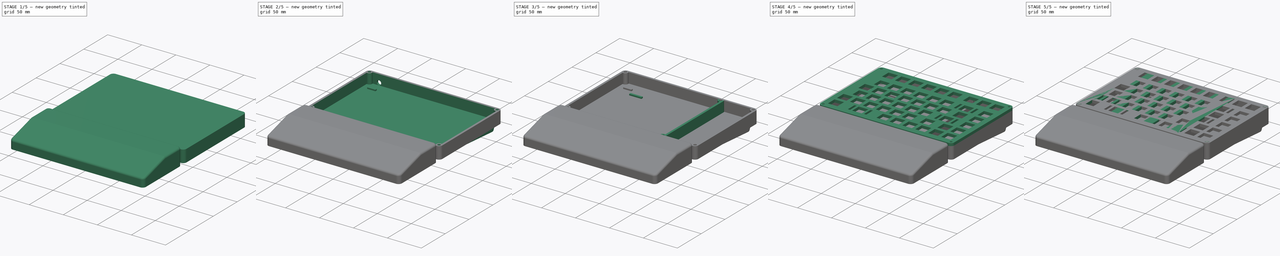
[diagram: build sequence overview — one tinted view per stage of 5, left to right]
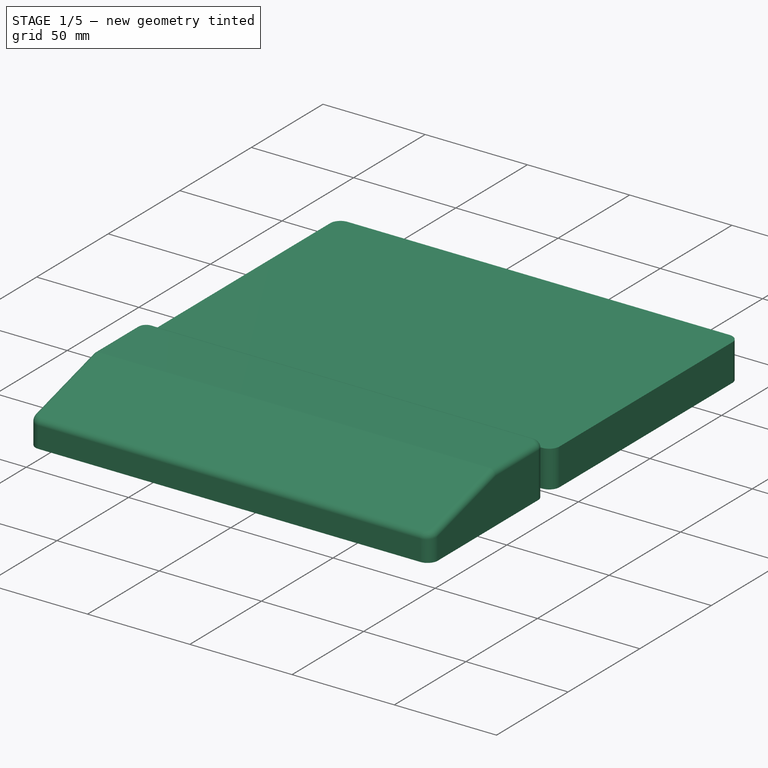
[diagram: stage 1 of 5 — iso view after this stage's code; geometry added in this stage tinted green]
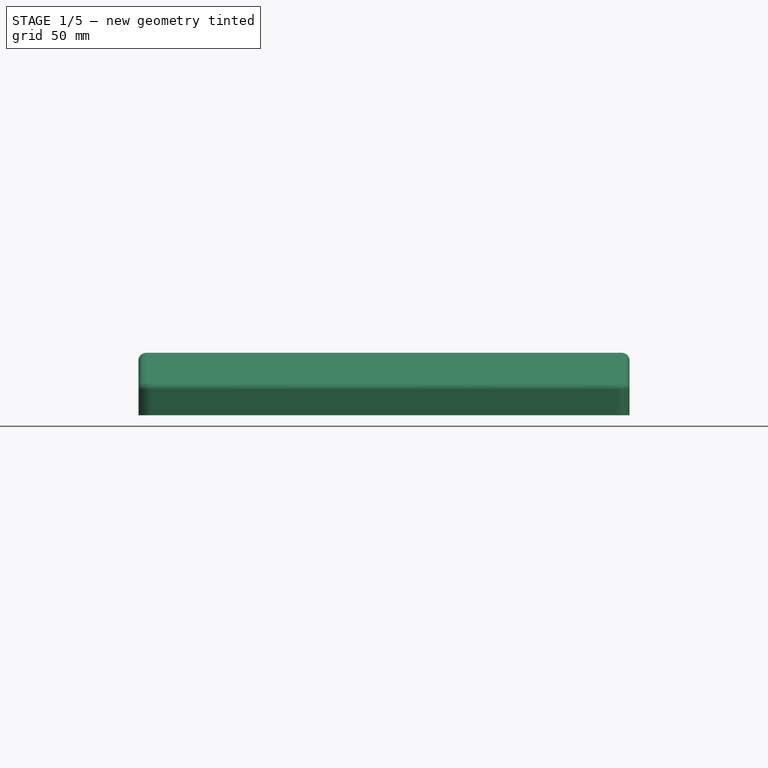
[diagram: stage 1 of 5 — front view after this stage's code; geometry added in this stage tinted green]
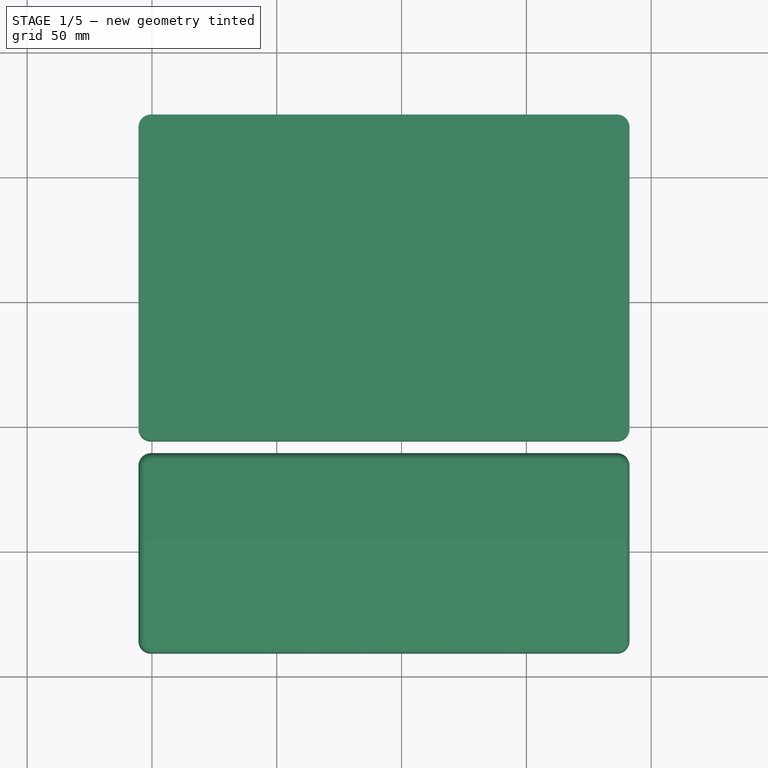
[diagram: stage 1 of 5 — top view after this stage's code; geometry added in this stage tinted green]
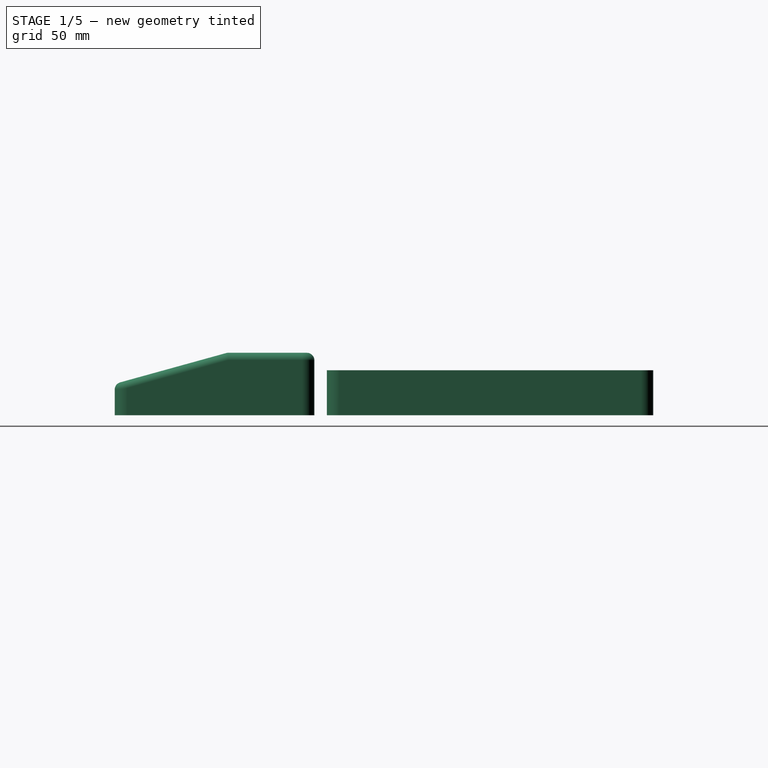
[diagram: stage 1 of 5 — right view after this stage's code; geometry added in this stage tinted green]
FCSTD DOCUMENT  (FreeCAD 1.1R20260414 (Git shallow))
Label: keyboard_parametric
License: All rights reserved
LicenseURL: https://en.wikipedia.org/wiki/All_rights_reserved
objects: Sketcher::SketchObject×30, PartDesign::Pocket×17, PartDesign::Pad×13, App::Point×6, PartDesign::Body×6, PartDesign::Fillet×4, Part::Feature×3, PartDesign::Chamfer×2, Spreadsheet::Sheet×1
note: 177 computed .brp shape members not serialized (recipe doc carries the construction recipe); baked Part::Feature solids carry a one-line shape summary decoded from their .brp

FEATURE [PartDesign::Body] Left_Keyboard_Body
  AllowCompound = true
  Group = -> [Left_Body_Outline,Left_Body_Pad,Left_Body_Cavity,Left_Body_Cavity_Pocket,Left_Body_Bosses,Left_Body_Boss_Pad,Left_Body_Insert_Holes,Left_Body_Insert_Pockets,Left_Body_Rest,Left_Body_Rest_Pad,Left_Body_Rest_Fillet,Left_Jack_Hole,Left_Jack_Hole_Pocket,Left_Jack_Stop,Left_Jack_Stop_Pad]
  Origin = -> Origin004
  Tip = -> Left_Jack_Stop_Pad
FEATURE [Part::Feature] Left_PJ322_Jack_Reference
  shape: bbox 9 x 15 x 7 mm, 8 faces (baked)
FEATURE [App::Point] Origin007  label="원점006"
  Role = Origin
FEATURE [Sketcher::SketchObject] Right_Body_Outline
  ArcFitTolerance = 1e-06
  ExternalTypes = [0]
  FullyConstrained = false
  MakeInternals = false
  Placement = pos=(0,0,-18) rot=(0,0,1;0rad)
  _ExternalGeoVersion = 1
  sketch-geometry (8):
    g0: LineSegment StartX=-0.38035 StartY=-5.791 StartZ=0 EndX=186.307 EndY=-5.791 EndZ=0
    g1: ArcOfCircle CenterX=186.307 CenterY=-0.791 CenterZ=0 NormalX=0 NormalY=0 NormalZ=1 AngleXU=0 Radius=5 StartAngle=4.71239 EndAngle=6.28319
    g2: LineSegment StartX=191.307 StartY=-0.791 StartZ=0 EndX=191.307 EndY=119.971 EndZ=0
    g3: ArcOfCircle CenterX=186.307 CenterY=119.971 CenterZ=0 NormalX=0 NormalY=0 NormalZ=1 AngleXU=0 Radius=5 StartAngle=0 EndAngle=1.5708
    g4: LineSegment StartX=186.307 StartY=124.971 StartZ=0 EndX=-0.38035 EndY=124.971 EndZ=0
    g5: ArcOfCircle CenterX=-0.38035 CenterY=119.971 CenterZ=0 NormalX=0 NormalY=0 NormalZ=1 AngleXU=0 Radius=5 StartAngle=1.5708 EndAngle=3.14159
    g6: LineSegment StartX=-5.38035 StartY=119.971 StartZ=0 EndX=-5.38035 EndY=-0.791 EndZ=0
    g7: ArcOfCircle CenterX=-0.38035 CenterY=-0.791 CenterZ=0 NormalX=0 NormalY=0 NormalZ=1 AngleXU=0 Radius=5 StartAngle=3.14159 EndAngle=4.71239
FEATURE [PartDesign::Pad] Right_Body_Pad
  Direction = (0,0,1)
  Length = 18
  Length2 = 10
  Placement = pos=(0,0,-18) rot=(0,0,1;0rad)
  Profile = -> Right_Body_Outline
  Refine = true
  SideType = 0
  Suppressed = false
  Type = 0
  Type2 = 0
  expr: Length = Parameters.BodyHeight
FEATURE [PartDesign::Body] Right_Keyboard_Body
  AllowCompound = true
  Group = -> [Right_Body_Outline,Right_Body_Pad,Right_Body_Cavity,Right_Body_Cavity_Pocket,Right_Body_Bosses,Right_Body_Boss_Pad,Right_Body_Insert_Holes,Right_Body_Insert_Pockets,Right_Body_Rest,Right_Body_Rest_Pad,Right_Body_Rest_Fillet,Right_Jack_Hole,Right_Jack_Hole_Pocket,Right_Jack_Stop,Right_Jack_Stop_Pad,Right_Ctrl_Seat,Right_Ctrl_Seat_Pocket,Right_Usb_Opening,Right_Usb_Opening_Pocket,Right_Usb_Bezel,+3 more]
  Origin = -> Origin006
  Placement = pos=(174.062,0,0) rot=(0,0,1;0rad)
  Tip = -> Right_Ctrl_Stop_Pad
FEATURE [Part::Feature] Right_RP2040_Zero_Reference
  Placement = pos=(174.062,0,0) rot=(0,0,1;0rad)
  shape: bbox 18 x 25 x 1.6 mm, 6 faces (baked)
FEATURE [Part::Feature] Right_PJ322_Jack_Reference
  Placement = pos=(174.062,0,0) rot=(0,0,1;0rad)
  shape: bbox 9 x 15 x 7 mm, 8 faces (baked)
FEATURE [App::Point] Origin009  label="원점008"
  Role = Origin
FEATURE [Sketcher::SketchObject] Left_Palm_Base
  ArcFitTolerance = 1e-06
  ExternalTypes = [0]
  FullyConstrained = false
  MakeInternals = false
  Placement = pos=(0,0,-18) rot=(0,0,1;0rad)
  _ExternalGeoVersion = 1
  sketch-geometry (8):
    g0: LineSegment StartX=-0.38035 StartY=-90.791 StartZ=0 EndX=138.682 EndY=-90.791 EndZ=0
    g1: ArcOfCircle CenterX=138.682 CenterY=-85.791 CenterZ=0 NormalX=0 NormalY=0 NormalZ=1 AngleXU=0 Radius=5 StartAngle=4.71239 EndAngle=6.28319
    g2: LineSegment StartX=143.682 StartY=-85.791 StartZ=0 EndX=143.682 EndY=-15.791 EndZ=0
    g3: ArcOfCircle CenterX=138.682 CenterY=-15.791 CenterZ=0 NormalX=0 NormalY=0 NormalZ=1 AngleXU=0 Radius=5 StartAngle=0 EndAngle=1.5708
    g4: LineSegment StartX=138.682 StartY=-10.791 StartZ=0 EndX=-0.38035 EndY=-10.791 EndZ=0
    g5: ArcOfCircle CenterX=-0.38035 CenterY=-15.791 CenterZ=0 NormalX=0 NormalY=0 NormalZ=1 AngleXU=0 Radius=5 StartAngle=1.5708 EndAngle=3.14159
    g6: LineSegment StartX=-5.38035 StartY=-15.791 StartZ=0 EndX=-5.38035 EndY=-85.791 EndZ=0
    g7: ArcOfCircle CenterX=-0.38035 CenterY=-85.791 CenterZ=0 NormalX=0 NormalY=0 NormalZ=1 AngleXU=0 Radius=5 StartAngle=3.14159 EndAngle=4.71239
FEATURE [PartDesign::Pad] Left_Palm_Pad
  Direction = (0,0,1)
  Length = 25
  Length2 = 10
  Placement = pos=(0,0,-18) rot=(0,0,1;0rad)
  Profile = -> Left_Palm_Base
  Refine = true
  SideType = 0
  Suppressed = false
  Type = 0
  Type2 = 0
  expr: Length = Parameters.PalmRestRearHeight
FEATURE [Sketcher::SketchObject] Left_Palm_WedgeCut
  ArcFitTolerance = 1e-06
  ExternalTypes = [0]
  FullyConstrained = false
  MakeInternals = false
  Placement = pos=(0,0,0) rot=(0.57735,0.57735,0.57735;2.0944rad)
  _ExternalGeoVersion = 1
  sketch-geometry (4):
    g0: LineSegment StartX=-45.791 StartY=7 StartZ=0 EndX=-92.791 EndY=-6 EndZ=0
    g1: LineSegment StartX=-92.791 StartY=-6 StartZ=0 EndX=-92.791 EndY=9 EndZ=0
    g2: LineSegment StartX=-92.791 StartY=9 StartZ=0 EndX=-45.791 EndY=9 EndZ=0
    g3: LineSegment StartX=-45.791 StartY=9 StartZ=0 EndX=-45.791 EndY=7 EndZ=0
FEATURE [PartDesign::Pocket] Left_Palm_Wedge
  BaseFeature = -> Left_Palm_Pad
  Direction = (-1,0,0)
  Length = 5
  Length2 = 5
  Placement = pos=(0,0,-18) rot=(0,0,1;0rad)
  Profile = -> Left_Palm_WedgeCut
  Refine = true
  SideType = 2
  Suppressed = false
  Type = 1
  Type2 = 0
FEATURE [PartDesign::Fillet] Left_Palm_Fillet
  Base = -> Left_Palm_Wedge [Edge3,Edge13,Edge14,Edge15,Edge16,Edge17,Edge20,Edge22,Edge24,Edge26,Edge27]
  BaseFeature = -> Left_Palm_Wedge
  Placement = pos=(0,0,-18) rot=(0,0,1;0rad)
  Radius = 3
  Refine = true
  SupportTransform = false
  Suppressed = false
  UseAllEdges = false
  expr: Radius = Parameters.PalmRestFilletRadius
FEATURE [PartDesign::Body] Left_Palm_Rest
  AllowCompound = true
  Group = -> [Left_Palm_Base,Left_Palm_Pad,Left_Palm_WedgeCut,Left_Palm_Wedge,Left_Palm_Fillet]
  Origin = -> Origin008
  Tip = -> Left_Palm_Fillet
FEATURE [App::Point] Origin011  label="원점010"
  Role = Origin
FEATURE [Sketcher::SketchObject] Right_Palm_Base
  ArcFitTolerance = 1e-06
  ExternalTypes = [0]
  FullyConstrained = false
  MakeInternals = false
  Placement = pos=(0,0,-18) rot=(0,0,1;0rad)
  _ExternalGeoVersion = 1
  sketch-geometry (8):
    g0: LineSegment StartX=-0.38035 StartY=-90.791 StartZ=0 EndX=186.307 EndY=-90.791 EndZ=0
    g1: ArcOfCircle CenterX=186.307 CenterY=-85.791 CenterZ=0 NormalX=0 NormalY=0 NormalZ=1 AngleXU=0 Radius=5 StartAngle=4.71239 EndAngle=6.28319
    g2: LineSegment StartX=191.307 StartY=-85.791 StartZ=0 EndX=191.307 EndY=-15.791 EndZ=0
    g3: ArcOfCircle CenterX=186.307 CenterY=-15.791 CenterZ=0 NormalX=0 NormalY=0 NormalZ=1 AngleXU=0 Radius=5 StartAngle=0 EndAngle=1.5708
    g4: LineSegment StartX=186.307 StartY=-10.791 StartZ=0 EndX=-0.38035 EndY=-10.791 EndZ=0
    g5: ArcOfCircle CenterX=-0.38035 CenterY=-15.791 CenterZ=0 NormalX=0 NormalY=0 NormalZ=1 AngleXU=0 Radius=5 StartAngle=1.5708 EndAngle=3.14159
    g6: LineSegment StartX=-5.38035 StartY=-15.791 StartZ=0 EndX=-5.38035 EndY=-85.791 EndZ=0
    g7: ArcOfCircle CenterX=-0.38035 CenterY=-85.791 CenterZ=0 NormalX=0 NormalY=0 NormalZ=1 AngleXU=0 Radius=5 StartAngle=3.14159 EndAngle=4.71239
FEATURE [PartDesign::Pad] Right_Palm_Pad
  Direction = (0,0,1)
  Length = 25
  Length2 = 10
  Placement = pos=(0,0,-18) rot=(0,0,1;0rad)
  Profile = -> Right_Palm_Base
  Refine = true
  SideType = 0
  Suppressed = false
  Type = 0
  Type2 = 0
  expr: Length = Parameters.PalmRestRearHeight
FEATURE [Sketcher::SketchObject] Right_Palm_WedgeCut
  ArcFitTolerance = 1e-06
  ExternalTypes = [0]
  FullyConstrained = false
  MakeInternals = false
  Placement = pos=(0,0,0) rot=(0.57735,0.57735,0.57735;2.0944rad)
  _ExternalGeoVersion = 1
  sketch-geometry (4):
    g0: LineSegment StartX=-45.791 StartY=7 StartZ=0 EndX=-92.791 EndY=-6 EndZ=0
    g1: LineSegment StartX=-92.791 StartY=-6 StartZ=0 EndX=-92.791 EndY=9 EndZ=0
    g2: LineSegment StartX=-92.791 StartY=9 StartZ=0 EndX=-45.791 EndY=9 EndZ=0
    g3: LineSegment StartX=-45.791 StartY=9 StartZ=0 EndX=-45.791 EndY=7 EndZ=0
FEATURE [PartDesign::Pocket] Right_Palm_Wedge
  BaseFeature = -> Right_Palm_Pad
  Direction = (-1,0,0)
  Length = 5
  Length2 = 5
  Placement = pos=(0,0,-18) rot=(0,0,1;0rad)
  Profile = -> Right_Palm_WedgeCut
  Refine = true
  SideType = 2
  Suppressed = false
  Type = 1
  Type2 = 0
FEATURE [PartDesign::Fillet] Right_Palm_Fillet
  Base = -> Right_Palm_Wedge [Edge3,Edge13,Edge14,Edge15,Edge16,Edge17,Edge20,Edge22,Edge24,Edge26,Edge27]
  BaseFeature = -> Right_Palm_Wedge
  Placement = pos=(0,0,-18) rot=(0,0,1;0rad)
  Radius = 3
  Refine = true
  SupportTransform = false
  Suppressed = false
  UseAllEdges = false
  expr: Radius = Parameters.PalmRestFilletRadius
FEATURE [PartDesign::Body] Right_Palm_Rest
  AllowCompound = true
  Group = -> [Right_Palm_Base,Right_Palm_Pad,Right_Palm_WedgeCut,Right_Palm_Wedge,Right_Palm_Fillet]
  Origin = -> Origin010
  Placement = pos=(174.062,0,0) rot=(0,0,1;0rad)
  Tip = -> Right_Palm_Fillet
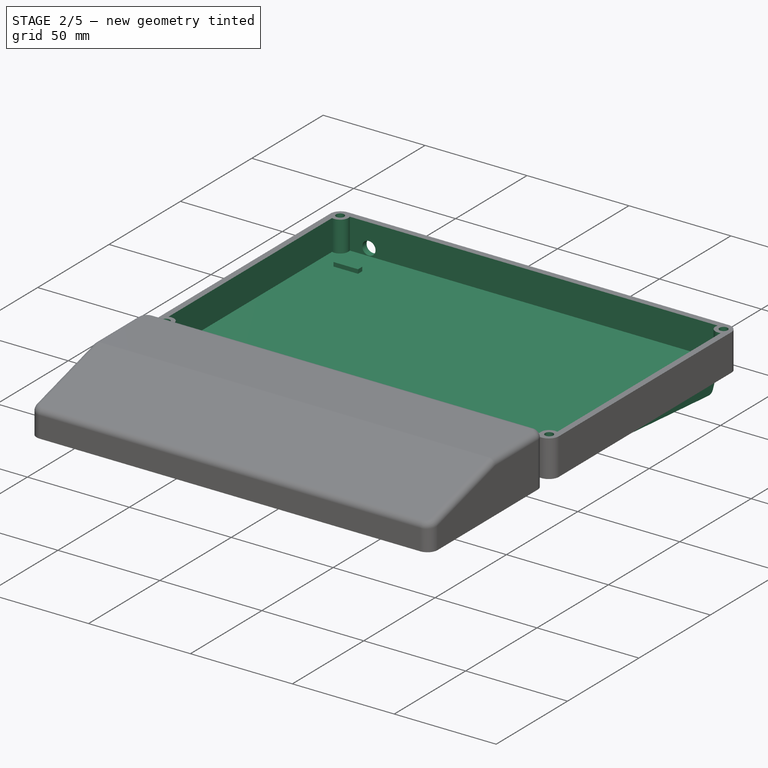
[diagram: stage 2 of 5 — iso view after this stage's code; geometry added in this stage tinted green]
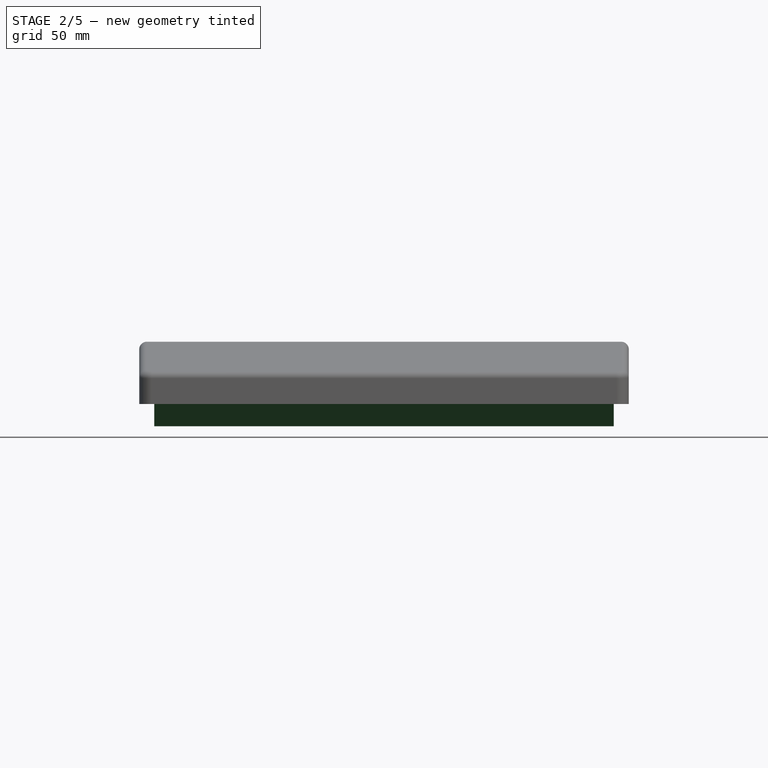
[diagram: stage 2 of 5 — front view after this stage's code; geometry added in this stage tinted green]
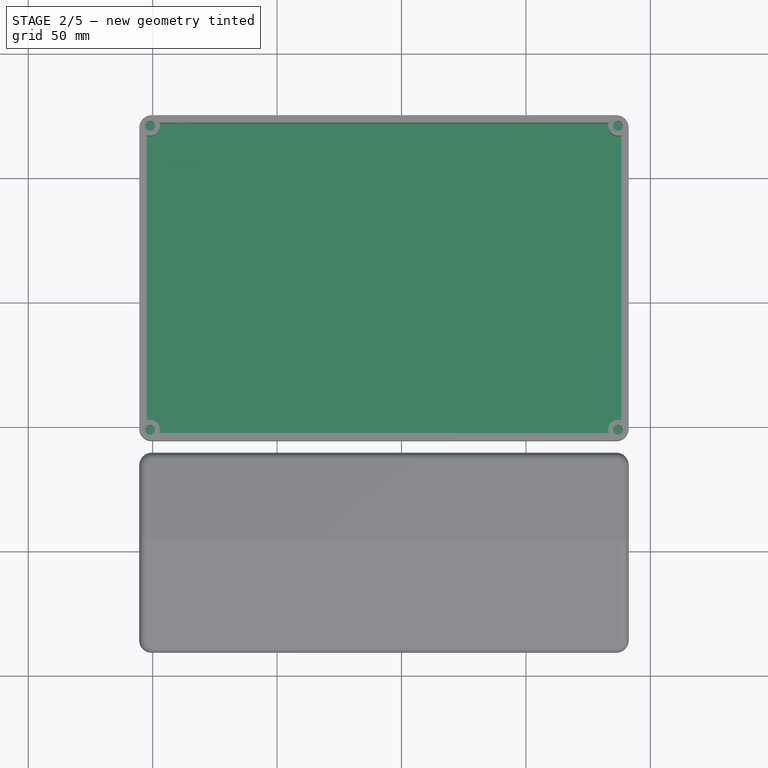
[diagram: stage 2 of 5 — top view after this stage's code; geometry added in this stage tinted green]
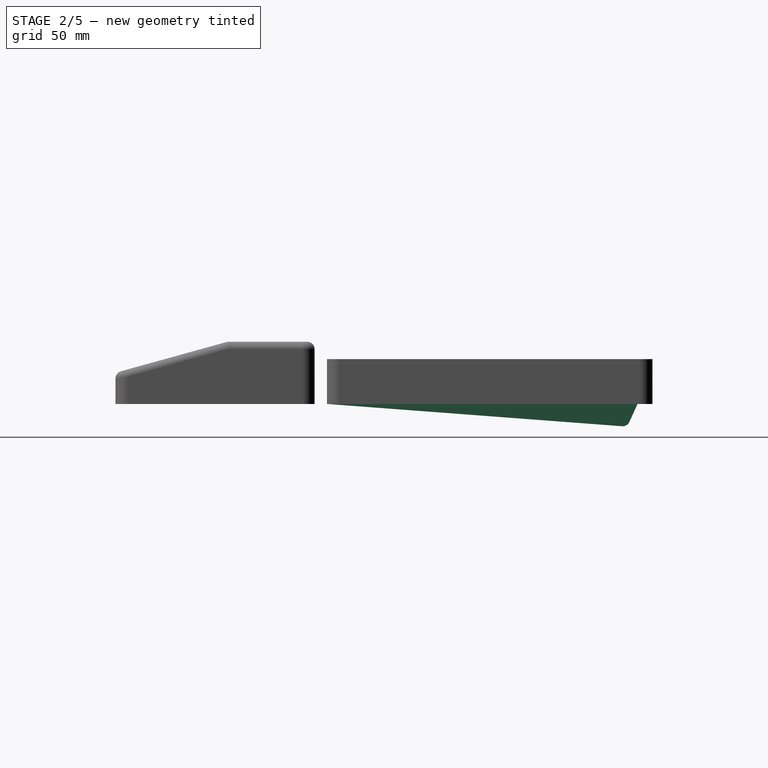
[diagram: stage 2 of 5 — right view after this stage's code; geometry added in this stage tinted green]
FEATURE [Sketcher::SketchObject] Right_Body_Cavity
  ArcFitTolerance = 1e-06
  ExternalTypes = [0]
  FullyConstrained = false
  MakeInternals = false
  _ExternalGeoVersion = 1
  sketch-geometry (8):
    g0: LineSegment StartX=-0.38035 StartY=-2.791 StartZ=0 EndX=186.307 EndY=-2.791 EndZ=0
    g1: ArcOfCircle CenterX=186.307 CenterY=-0.791 CenterZ=0 NormalX=0 NormalY=0 NormalZ=1 AngleXU=0 Radius=2 StartAngle=4.71239 EndAngle=6.28319
    g2: LineSegment StartX=188.307 StartY=-0.791 StartZ=0 EndX=188.307 EndY=119.971 EndZ=0
    g3: ArcOfCircle CenterX=186.307 CenterY=119.971 CenterZ=0 NormalX=0 NormalY=0 NormalZ=1 AngleXU=0 Radius=2 StartAngle=0 EndAngle=1.5708
    g4: LineSegment StartX=186.307 StartY=121.971 StartZ=0 EndX=-0.38035 EndY=121.971 EndZ=0
    g5: ArcOfCircle CenterX=-0.38035 CenterY=119.971 CenterZ=0 NormalX=0 NormalY=0 NormalZ=1 AngleXU=0 Radius=2 StartAngle=1.5708 EndAngle=3.14159
    g6: LineSegment StartX=-2.38035 StartY=119.971 StartZ=0 EndX=-2.38035 EndY=-0.791 EndZ=0
    g7: ArcOfCircle CenterX=-0.38035 CenterY=-0.791 CenterZ=0 NormalX=0 NormalY=0 NormalZ=1 AngleXU=0 Radius=2 StartAngle=3.14159 EndAngle=4.71239
FEATURE [PartDesign::Pocket] Right_Body_Cavity_Pocket
  BaseFeature = -> Right_Body_Pad
  Direction = (0,0,-1)
  Length = 15
  Length2 = 5
  Placement = pos=(0,0,-18) rot=(0,0,1;0rad)
  Profile = -> Right_Body_Cavity
  Refine = true
  SideType = 0
  Suppressed = false
  Type = 0
  Type2 = 0
  expr: Length = Parameters.BodyHeight - Parameters.BodyWallThickness
FEATURE [Sketcher::SketchObject] Right_Body_Bosses
  ArcFitTolerance = 1e-06
  ExternalTypes = [0]
  FullyConstrained = false
  MakeInternals = false
  Placement = pos=(0,0,-15) rot=(0,0,1;0rad)
  _ExternalGeoVersion = 1
  sketch-geometry (4):
    g0: Circle CenterX=-1.08035 CenterY=-1.491 CenterZ=0 NormalX=0 NormalY=0 NormalZ=1 AngleXU=0 Radius=4
    g1: Circle CenterX=187.007 CenterY=-1.491 CenterZ=0 NormalX=0 NormalY=0 NormalZ=1 AngleXU=0 Radius=4
    g2: Circle CenterX=-1.08035 CenterY=120.671 CenterZ=0 NormalX=0 NormalY=0 NormalZ=1 AngleXU=0 Radius=4
    g3: Circle CenterX=187.007 CenterY=120.671 CenterZ=0 NormalX=0 NormalY=0 NormalZ=1 AngleXU=0 Radius=4
FEATURE [PartDesign::Pad] Right_Body_Boss_Pad
  BaseFeature = -> Right_Body_Cavity_Pocket
  Direction = (0,0,1)
  Length = 15
  Length2 = 10
  Placement = pos=(0,0,-18) rot=(0,0,1;0rad)
  Profile = -> Right_Body_Bosses
  Refine = true
  SideType = 0
  Suppressed = false
  Type = 0
  Type2 = 0
  expr: Length = Parameters.BodyHeight - Parameters.BodyWallThickness
FEATURE [Sketcher::SketchObject] Right_Body_Insert_Holes
  ArcFitTolerance = 1e-06
  ExternalTypes = [0]
  FullyConstrained = false
  MakeInternals = false
  _ExternalGeoVersion = 1
  sketch-geometry (4):
    g0: Circle CenterX=-1.08035 CenterY=-1.491 CenterZ=0 NormalX=0 NormalY=0 NormalZ=1 AngleXU=0 Radius=2
    g1: Circle CenterX=187.007 CenterY=-1.491 CenterZ=0 NormalX=0 NormalY=0 NormalZ=1 AngleXU=0 Radius=2
    g2: Circle CenterX=-1.08035 CenterY=120.671 CenterZ=0 NormalX=0 NormalY=0 NormalZ=1 AngleXU=0 Radius=2
    g3: Circle CenterX=187.007 CenterY=120.671 CenterZ=0 NormalX=0 NormalY=0 NormalZ=1 AngleXU=0 Radius=2
FEATURE [PartDesign::Pocket] Right_Body_Insert_Pockets
  BaseFeature = -> Right_Body_Boss_Pad
  Direction = (0,0,-1)
  Length = 7
  Length2 = 5
  Placement = pos=(0,0,-18) rot=(0,0,1;0rad)
  Profile = -> Right_Body_Insert_Holes
  Refine = true
  SideType = 0
  Suppressed = false
  Type = 0
  Type2 = 0
  expr: Length = Parameters.SpredsertM3Length + Parameters.M3ScrewTipRelief
FEATURE [Sketcher::SketchObject] Right_Body_Rest
  ArcFitTolerance = 1e-06
  ExternalTypes = [0]
  FullyConstrained = false
  MakeInternals = false
  Placement = pos=(92.9633,0,0) rot=(0.57735,0.57735,0.57735;2.0944rad)
  _ExternalGeoVersion = 1
  sketch-geometry (3):
    g0: LineSegment StartX=-5.791 StartY=-18 StartZ=0 EndX=118.971 EndY=-18 EndZ=0
    g1: LineSegment StartX=118.971 StartY=-18 StartZ=0 EndX=114.853 EndY=-27.1126 EndZ=0
    g2: LineSegment StartX=114.853 StartY=-27.1126 StartZ=0 EndX=-5.791 EndY=-18 EndZ=0
FEATURE [PartDesign::Pad] Right_Body_Rest_Pad
  BaseFeature = -> Right_Body_Insert_Pockets
  Direction = (1,0,0)
  Length = 184.687
  Length2 = 10
  Placement = pos=(0,0,-18) rot=(0,0,1;0rad)
  Profile = -> Right_Body_Rest
  Refine = true
  SideType = 2
  Suppressed = false
  Type = 0
  Type2 = 0
FEATURE [PartDesign::Fillet] Right_Body_Rest_Fillet
  Base = -> Right_Body_Rest_Pad [Edge21]
  BaseFeature = -> Right_Body_Rest_Pad
  Placement = pos=(0,0,-18) rot=(0,0,1;0rad)
  Radius = 3
  Refine = true
  SupportTransform = false
  Suppressed = false
  UseAllEdges = false
  expr: Radius = Parameters.RestRearCornerFillet
FEATURE [Sketcher::SketchObject] Right_Jack_Hole
  ArcFitTolerance = 1e-06
  ExternalTypes = [0]
  FullyConstrained = false
  MakeInternals = false
  Placement = pos=(0,124.971,0) rot=(1,0,0;1.5708rad)
  _ExternalGeoVersion = 1
  sketch-geometry (1):
    g0: Circle CenterX=12.1197 CenterY=-11.5 CenterZ=0 NormalX=0 NormalY=0 NormalZ=1 AngleXU=0 Radius=3.25
FEATURE [PartDesign::Pocket] Right_Jack_Hole_Pocket
  BaseFeature = -> Right_Body_Rest_Fillet
  Direction = (0,1,-2e-16)
  Length = 3.2
  Length2 = 5
  Placement = pos=(0,0,-18) rot=(0,0,1;0rad)
  Profile = -> Right_Jack_Hole
  Refine = true
  Reversed = true
  SideType = 0
  Suppressed = false
  Type = 0
  Type2 = 0
FEATURE [Sketcher::SketchObject] Right_Jack_Stop
  ArcFitTolerance = 1e-06
  ExternalTypes = [0]
  FullyConstrained = false
  MakeInternals = false
  Placement = pos=(0,0,-15) rot=(0,0,1;0rad)
  _ExternalGeoVersion = 1
  sketch-geometry (4):
    g0: LineSegment StartX=6.11965 StartY=105.771 StartZ=0 EndX=18.1197 EndY=105.771 EndZ=0
    g1: LineSegment StartX=18.1197 StartY=105.771 StartZ=0 EndX=18.1197 EndY=108.771 EndZ=0
    g2: LineSegment StartX=18.1197 StartY=108.771 StartZ=0 EndX=6.11965 EndY=108.771 EndZ=0
    g3: LineSegment StartX=6.11965 StartY=108.771 StartZ=0 EndX=6.11965 EndY=105.771 EndZ=0
FEATURE [PartDesign::Pad] Right_Jack_Stop_Pad
  BaseFeature = -> Right_Jack_Hole_Pocket
  Direction = (0,0,1)
  Length = 2
  Length2 = 10
  Placement = pos=(0,0,-18) rot=(0,0,1;0rad)
  Profile = -> Right_Jack_Stop
  Refine = true
  SideType = 0
  Suppressed = false
  Type = 0
  Type2 = 0
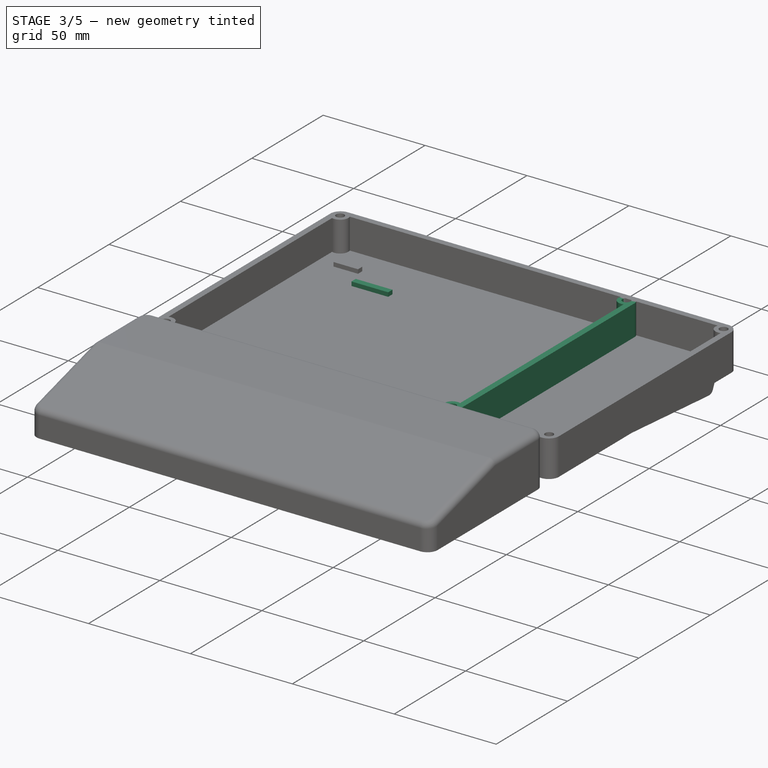
[diagram: stage 3 of 5 — iso view after this stage's code; geometry added in this stage tinted green]
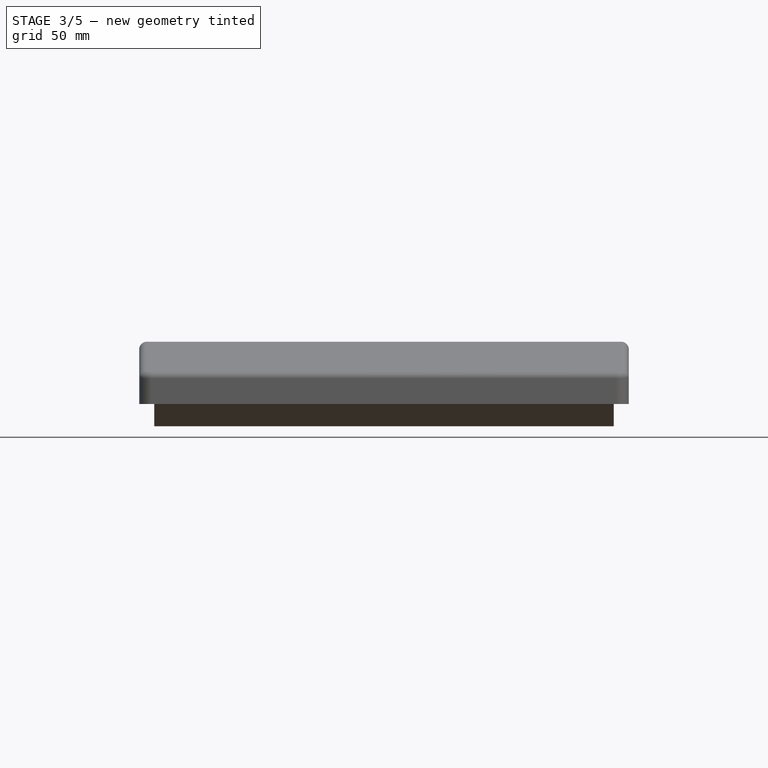
[diagram: stage 3 of 5 — front view after this stage's code; geometry added in this stage tinted green]
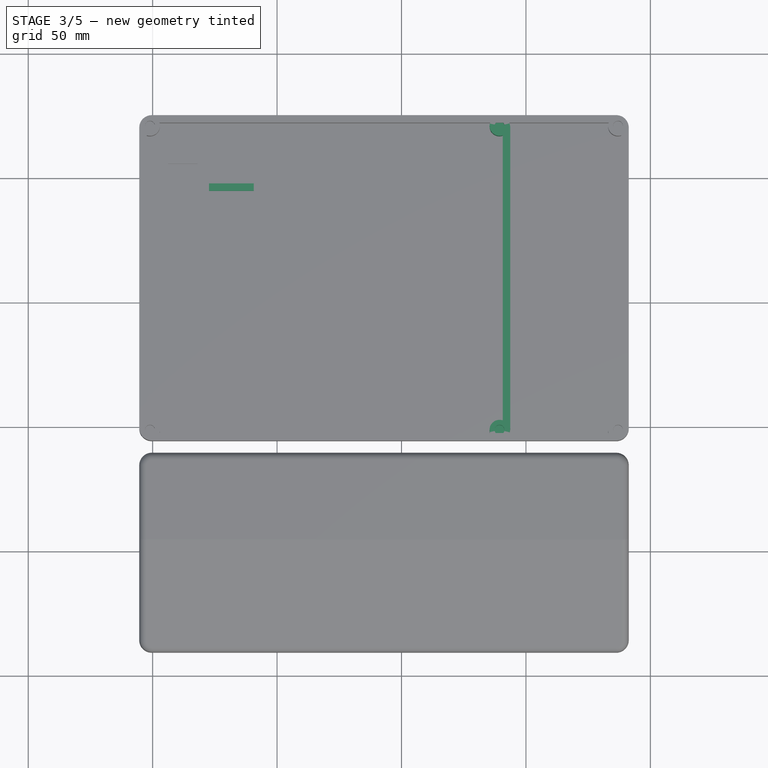
[diagram: stage 3 of 5 — top view after this stage's code; geometry added in this stage tinted green]
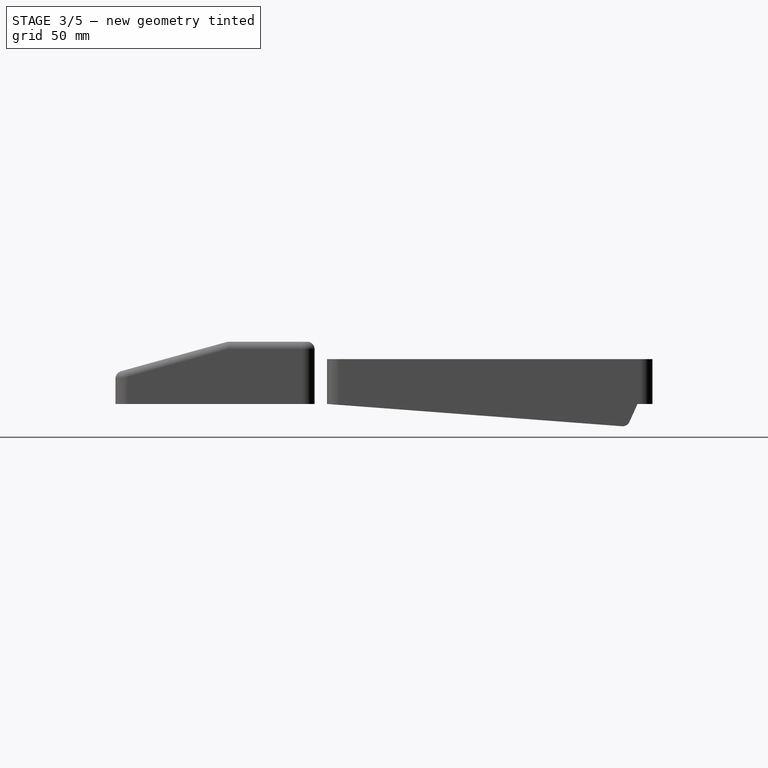
[diagram: stage 3 of 5 — right view after this stage's code; geometry added in this stage tinted green]
FEATURE [PartDesign::Body] Right_Switch_Plate
  AllowCompound = true
  Group = -> [Right_Plate_Outline,Right_Plate_Pad,Right_Key_Cutouts,Right_Key_Pockets,Right_Screw_Holes,Right_Screw_Pockets,Right_Screw_Countersink,Right_Stab_Relief,Right_Stab_Relief_Pocket]
  Origin = -> Origin002
  Placement = pos=(174.062,0,0) rot=(0,0,1;0rad)
  Tip = -> Right_Stab_Relief_Pocket
FEATURE [App::Point] Origin005  label="원점004"
  Role = Origin
FEATURE [Sketcher::SketchObject] Left_Body_Outline
  ArcFitTolerance = 1e-06
  ExternalTypes = [0]
  FullyConstrained = false
  MakeInternals = false
  Placement = pos=(0,0,-18) rot=(0,0,1;0rad)
  _ExternalGeoVersion = 1
  sketch-geometry (8):
    g0: LineSegment StartX=-0.38035 StartY=-5.791 StartZ=0 EndX=138.682 EndY=-5.791 EndZ=0
    g1: ArcOfCircle CenterX=138.682 CenterY=-0.791 CenterZ=0 NormalX=0 NormalY=0 NormalZ=1 AngleXU=0 Radius=5 StartAngle=4.71239 EndAngle=6.28319
    g2: LineSegment StartX=143.682 StartY=-0.791 StartZ=0 EndX=143.682 EndY=119.971 EndZ=0
    g3: ArcOfCircle CenterX=138.682 CenterY=119.971 CenterZ=0 NormalX=0 NormalY=0 NormalZ=1 AngleXU=0 Radius=5 StartAngle=0 EndAngle=1.5708
    g4: LineSegment StartX=138.682 StartY=124.971 StartZ=0 EndX=-0.38035 EndY=124.971 EndZ=0
    g5: ArcOfCircle CenterX=-0.38035 CenterY=119.971 CenterZ=0 NormalX=0 NormalY=0 NormalZ=1 AngleXU=0 Radius=5 StartAngle=1.5708 EndAngle=3.14159
    g6: LineSegment StartX=-5.38035 StartY=119.971 StartZ=0 EndX=-5.38035 EndY=-0.791 EndZ=0
    g7: ArcOfCircle CenterX=-0.38035 CenterY=-0.791 CenterZ=0 NormalX=0 NormalY=0 NormalZ=1 AngleXU=0 Radius=5 StartAngle=3.14159 EndAngle=4.71239
FEATURE [PartDesign::Pad] Left_Body_Pad
  Direction = (0,0,1)
  Length = 18
  Length2 = 10
  Placement = pos=(0,0,-18) rot=(0,0,1;0rad)
  Profile = -> Left_Body_Outline
  Refine = true
  SideType = 0
  Suppressed = false
  Type = 0
  Type2 = 0
  expr: Length = Parameters.BodyHeight
FEATURE [Sketcher::SketchObject] Left_Body_Cavity
  ArcFitTolerance = 1e-06
  ExternalTypes = [0]
  FullyConstrained = false
  MakeInternals = false
  _ExternalGeoVersion = 1
  sketch-geometry (8):
    g0: LineSegment StartX=-0.38035 StartY=-2.791 StartZ=0 EndX=138.682 EndY=-2.791 EndZ=0
    g1: ArcOfCircle CenterX=138.682 CenterY=-0.791 CenterZ=0 NormalX=0 NormalY=0 NormalZ=1 AngleXU=0 Radius=2 StartAngle=4.71239 EndAngle=6.28319
    g2: LineSegment StartX=140.682 StartY=-0.791 StartZ=0 EndX=140.682 EndY=119.971 EndZ=0
    g3: ArcOfCircle CenterX=138.682 CenterY=119.971 CenterZ=0 NormalX=0 NormalY=0 NormalZ=1 AngleXU=0 Radius=2 StartAngle=0 EndAngle=1.5708
    g4: LineSegment StartX=138.682 StartY=121.971 StartZ=0 EndX=-0.38035 EndY=121.971 EndZ=0
    g5: ArcOfCircle CenterX=-0.38035 CenterY=119.971 CenterZ=0 NormalX=0 NormalY=0 NormalZ=1 AngleXU=0 Radius=2 StartAngle=1.5708 EndAngle=3.14159
    g6: LineSegment StartX=-2.38035 StartY=119.971 StartZ=0 EndX=-2.38035 EndY=-0.791 EndZ=0
    g7: ArcOfCircle CenterX=-0.38035 CenterY=-0.791 CenterZ=0 NormalX=0 NormalY=0 NormalZ=1 AngleXU=0 Radius=2 StartAngle=3.14159 EndAngle=4.71239
FEATURE [PartDesign::Pocket] Left_Body_Cavity_Pocket
  BaseFeature = -> Left_Body_Pad
  Direction = (0,0,-1)
  Length = 15
  Length2 = 5
  Placement = pos=(0,0,-18) rot=(0,0,1;0rad)
  Profile = -> Left_Body_Cavity
  Refine = true
  SideType = 0
  Suppressed = false
  Type = 0
  Type2 = 0
  expr: Length = Parameters.BodyHeight - Parameters.BodyWallThickness
FEATURE [Sketcher::SketchObject] Left_Body_Bosses
  ArcFitTolerance = 1e-06
  ExternalTypes = [0]
  FullyConstrained = false
  MakeInternals = false
  Placement = pos=(0,0,-15) rot=(0,0,1;0rad)
  _ExternalGeoVersion = 1
  sketch-geometry (4):
    g0: Circle CenterX=-1.08035 CenterY=-1.491 CenterZ=0 NormalX=0 NormalY=0 NormalZ=1 AngleXU=0 Radius=4
    g1: Circle CenterX=139.382 CenterY=-1.491 CenterZ=0 NormalX=0 NormalY=0 NormalZ=1 AngleXU=0 Radius=4
    g2: Circle CenterX=-1.08035 CenterY=120.671 CenterZ=0 NormalX=0 NormalY=0 NormalZ=1 AngleXU=0 Radius=4
    g3: Circle CenterX=139.382 CenterY=120.671 CenterZ=0 NormalX=0 NormalY=0 NormalZ=1 AngleXU=0 Radius=4
FEATURE [PartDesign::Pad] Left_Body_Boss_Pad
  BaseFeature = -> Left_Body_Cavity_Pocket
  Direction = (0,0,1)
  Length = 15
  Length2 = 10
  Placement = pos=(0,0,-18) rot=(0,0,1;0rad)
  Profile = -> Left_Body_Bosses
  Refine = true
  SideType = 0
  Suppressed = false
  Type = 0
  Type2 = 0
  expr: Length = Parameters.BodyHeight - Parameters.BodyWallThickness
FEATURE [Sketcher::SketchObject] Left_Body_Insert_Holes
  ArcFitTolerance = 1e-06
  ExternalTypes = [0]
  FullyConstrained = false
  MakeInternals = false
  _ExternalGeoVersion = 1
  sketch-geometry (4):
    g0: Circle CenterX=-1.08035 CenterY=-1.491 CenterZ=0 NormalX=0 NormalY=0 NormalZ=1 AngleXU=0 Radius=2
    g1: Circle CenterX=139.382 CenterY=-1.491 CenterZ=0 NormalX=0 NormalY=0 NormalZ=1 AngleXU=0 Radius=2
    g2: Circle CenterX=-1.08035 CenterY=120.671 CenterZ=0 NormalX=0 NormalY=0 NormalZ=1 AngleXU=0 Radius=2
    g3: Circle CenterX=139.382 CenterY=120.671 CenterZ=0 NormalX=0 NormalY=0 NormalZ=1 AngleXU=0 Radius=2
FEATURE [PartDesign::Pocket] Left_Body_Insert_Pockets
  BaseFeature = -> Left_Body_Boss_Pad
  Direction = (0,0,-1)
  Length = 7
  Length2 = 5
  Placement = pos=(0,0,-18) rot=(0,0,1;0rad)
  Profile = -> Left_Body_Insert_Holes
  Refine = true
  SideType = 0
  Suppressed = false
  Type = 0
  Type2 = 0
  expr: Length = Parameters.SpredsertM3Length + Parameters.M3ScrewTipRelief
FEATURE [Sketcher::SketchObject] Right_Ctrl_Seat
  ArcFitTolerance = 1e-06
  ExternalTypes = [0]
  FullyConstrained = false
  MakeInternals = false
  Placement = pos=(0,0,-15) rot=(0,0,1;0rad)
  _ExternalGeoVersion = 1
  sketch-geometry (4):
    g0: LineSegment StartX=21.52 StartY=97.771 StartZ=0 EndX=41.72 EndY=97.771 EndZ=0
    g1: LineSegment StartX=41.72 StartY=97.771 StartZ=0 EndX=41.72 EndY=121.971 EndZ=0
    g2: LineSegment StartX=41.72 StartY=121.971 StartZ=0 EndX=21.52 EndY=121.971 EndZ=0
    g3: LineSegment StartX=21.52 StartY=121.971 StartZ=0 EndX=21.52 EndY=97.771 EndZ=0
FEATURE [PartDesign::Pocket] Right_Ctrl_Seat_Pocket
  BaseFeature = -> Right_Jack_Stop_Pad
  Direction = (0,0,-1)
  Length = 1
  Length2 = 5
  Placement = pos=(0,0,-18) rot=(0,0,1;0rad)
  Profile = -> Right_Ctrl_Seat
  Refine = true
  SideType = 0
  Suppressed = false
  Type = 0
  Type2 = 0
FEATURE [Sketcher::SketchObject] Right_Usb_Opening
  ArcFitTolerance = 1e-06
  ExternalTypes = [0]
  FullyConstrained = false
  MakeInternals = false
  Placement = pos=(0,124.971,0) rot=(1,0,0;1.5708rad)
  _ExternalGeoVersion = 1
  sketch-geometry (8):
    g0: LineSegment StartX=28.12 StartY=-14.15 StartZ=0 EndX=35.12 EndY=-14.15 EndZ=0
    g1: ArcOfCircle CenterX=35.12 CenterY=-12.65 CenterZ=0 NormalX=0 NormalY=0 NormalZ=1 AngleXU=0 Radius=1.5 StartAngle=4.71239 EndAngle=6.28319
    g2: LineSegment StartX=36.62 StartY=-12.65 StartZ=0 EndX=36.62 EndY=-11.95 EndZ=0
    g3: ArcOfCircle CenterX=35.12 CenterY=-11.95 CenterZ=0 NormalX=0 NormalY=0 NormalZ=1 AngleXU=0 Radius=1.5 StartAngle=0 EndAngle=1.5708
    g4: LineSegment StartX=35.12 StartY=-10.45 StartZ=0 EndX=28.12 EndY=-10.45 EndZ=0
    g5: ArcOfCircle CenterX=28.12 CenterY=-11.95 CenterZ=0 NormalX=0 NormalY=0 NormalZ=1 AngleXU=0 Radius=1.5 StartAngle=1.5708 EndAngle=3.14159
    g6: LineSegment StartX=26.62 StartY=-11.95 StartZ=0 EndX=26.62 EndY=-12.65 EndZ=0
    g7: ArcOfCircle CenterX=28.12 CenterY=-12.65 CenterZ=0 NormalX=0 NormalY=0 NormalZ=1 AngleXU=0 Radius=1.5 StartAngle=3.14159 EndAngle=4.71239
FEATURE [PartDesign::Pocket] Right_Usb_Opening_Pocket
  BaseFeature = -> Right_Ctrl_Seat_Pocket
  Direction = (0,1,-2e-16)
  Length = 3.2
  Length2 = 5
  Placement = pos=(0,0,-18) rot=(0,0,1;0rad)
  Profile = -> Right_Usb_Opening
  Refine = true
  Reversed = true
  SideType = 0
  Suppressed = false
  Type = 0
  Type2 = 0
FEATURE [Sketcher::SketchObject] Right_Usb_Bezel
  ArcFitTolerance = 1e-06
  ExternalTypes = [0]
  FullyConstrained = false
  MakeInternals = false
  Placement = pos=(0,124.971,0) rot=(1,0,0;1.5708rad)
  _ExternalGeoVersion = 1
  sketch-geometry (8):
    g0: LineSegment StartX=28.42 StartY=-16.15 StartZ=0 EndX=34.82 EndY=-16.15 EndZ=0
    g1: ArcOfCircle CenterX=34.82 CenterY=-12.35 CenterZ=0 NormalX=0 NormalY=0 NormalZ=1 AngleXU=0 Radius=3.8 StartAngle=4.71239 EndAngle=6.28319
    g2: LineSegment StartX=38.62 StartY=-12.35 StartZ=0 EndX=38.62 EndY=-12.25 EndZ=0
    g3: ArcOfCircle CenterX=34.82 CenterY=-12.25 CenterZ=0 NormalX=0 NormalY=0 NormalZ=1 AngleXU=0 Radius=3.8 StartAngle=0 EndAngle=1.5708
    g4: LineSegment StartX=34.82 StartY=-8.45 StartZ=0 EndX=28.42 EndY=-8.45 EndZ=0
    g5: ArcOfCircle CenterX=28.42 CenterY=-12.25 CenterZ=0 NormalX=0 NormalY=0 NormalZ=1 AngleXU=0 Radius=3.8 StartAngle=1.5708 EndAngle=3.14159
    g6: LineSegment StartX=24.62 StartY=-12.25 StartZ=0 EndX=24.62 EndY=-12.35 EndZ=0
    g7: ArcOfCircle CenterX=28.42 CenterY=-12.35 CenterZ=0 NormalX=0 NormalY=0 NormalZ=1 AngleXU=0 Radius=3.8 StartAngle=3.14159 EndAngle=4.71239
FEATURE [PartDesign::Pocket] Right_Usb_Bezel_Pocket
  BaseFeature = -> Right_Usb_Opening_Pocket
  Direction = (0,1,-2e-16)
  Length = 1.1
  Length2 = 5
  Placement = pos=(0,0,-18) rot=(0,0,1;0rad)
  Profile = -> Right_Usb_Bezel
  Refine = true
  Reversed = true
  SideType = 0
  Suppressed = false
  Type = 0
  Type2 = 0
FEATURE [Sketcher::SketchObject] Right_Ctrl_Stop
  ArcFitTolerance = 1e-06
  ExternalTypes = [0]
  FullyConstrained = false
  MakeInternals = false
  Placement = pos=(0,0,-15) rot=(0,0,1;0rad)
  _ExternalGeoVersion = 1
  sketch-geometry (4):
    g0: LineSegment StartX=22.62 StartY=94.771 StartZ=0 EndX=40.62 EndY=94.771 EndZ=0
    g1: LineSegment StartX=40.62 StartY=94.771 StartZ=0 EndX=40.62 EndY=97.771 EndZ=0
    g2: LineSegment StartX=40.62 StartY=97.771 StartZ=0 EndX=22.62 EndY=97.771 EndZ=0
    g3: LineSegment StartX=22.62 StartY=97.771 StartZ=0 EndX=22.62 EndY=94.771 EndZ=0
FEATURE [PartDesign::Pad] Right_Ctrl_Stop_Pad
  BaseFeature = -> Right_Usb_Bezel_Pocket
  Direction = (0,0,1)
  Length = 2
  Length2 = 10
  Placement = pos=(0,0,-18) rot=(0,0,1;0rad)
  Profile = -> Right_Ctrl_Stop
  Refine = true
  SideType = 0
  Suppressed = false
  Type = 0
  Type2 = 0
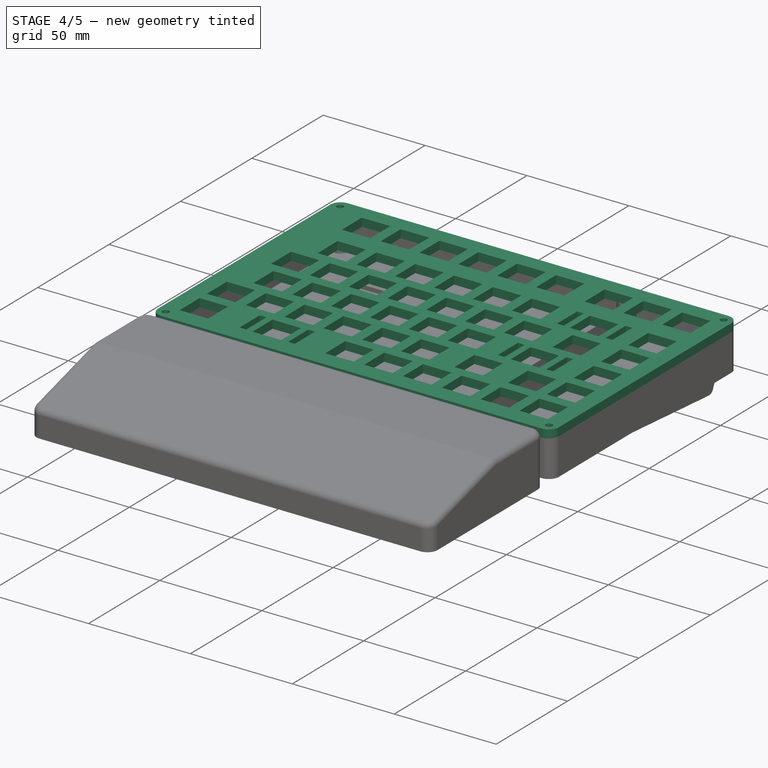
[diagram: stage 4 of 5 — iso view after this stage's code; geometry added in this stage tinted green]
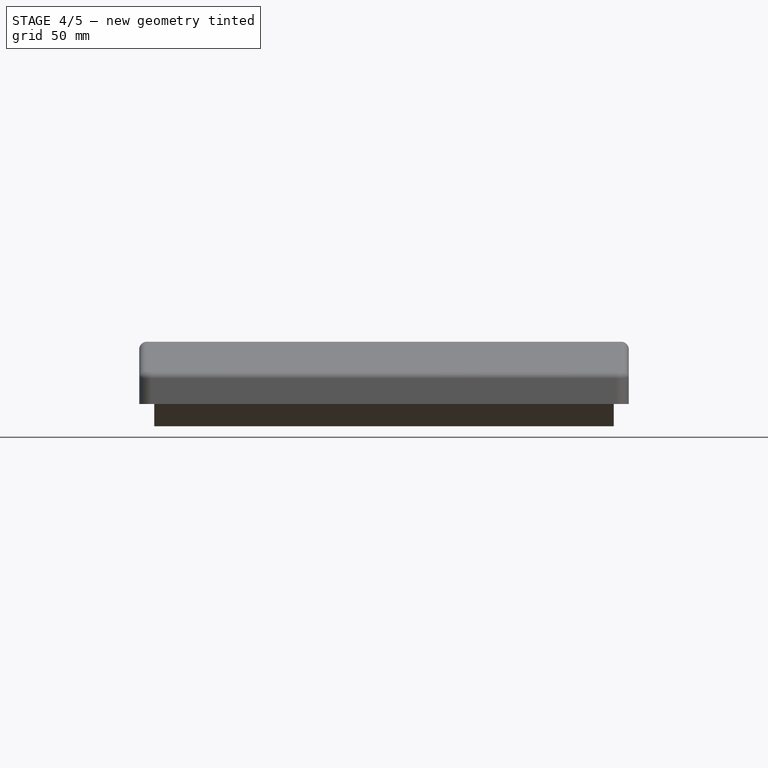
[diagram: stage 4 of 5 — front view after this stage's code; geometry added in this stage tinted green]
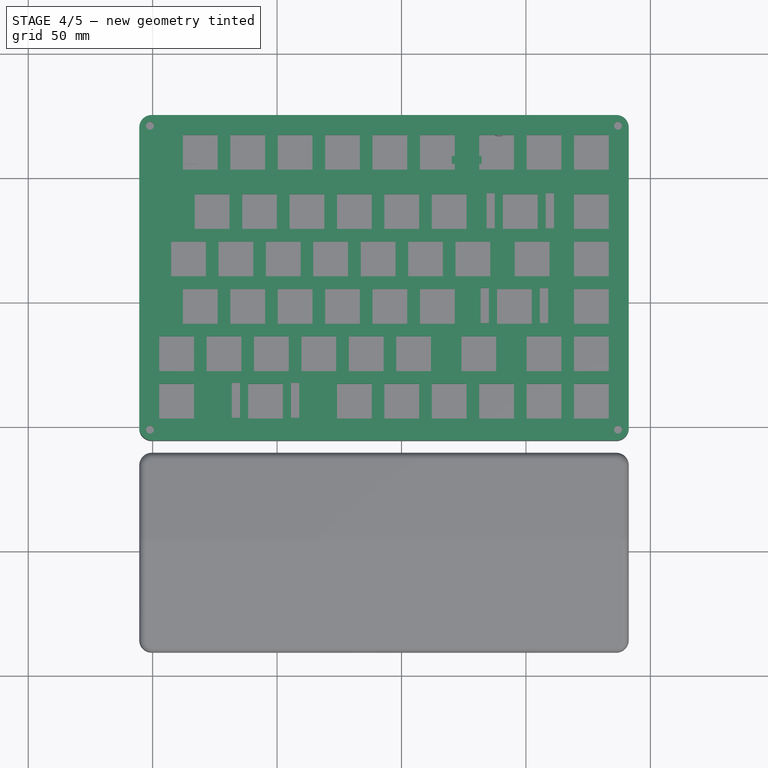
[diagram: stage 4 of 5 — top view after this stage's code; geometry added in this stage tinted green]
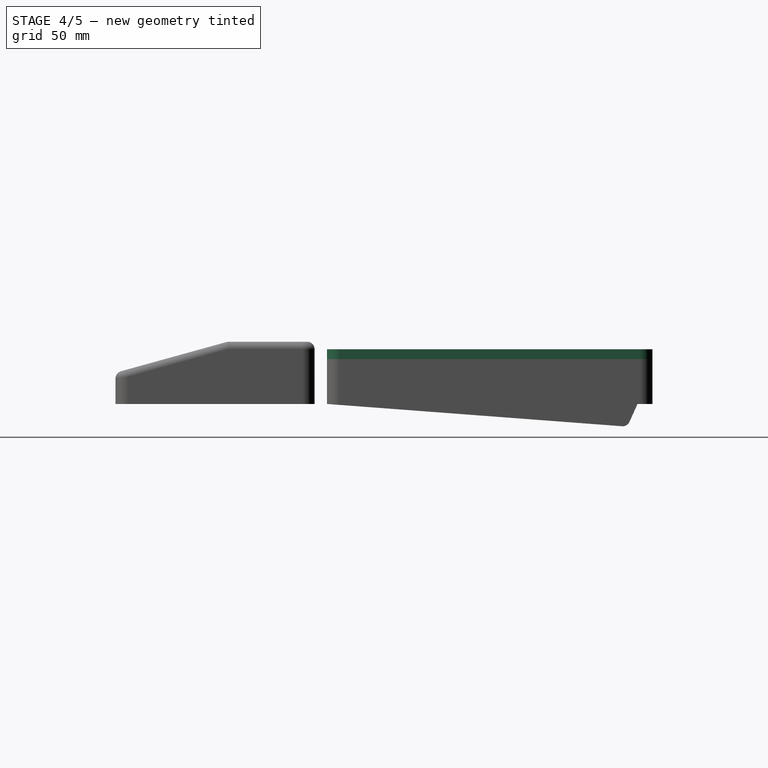
[diagram: stage 4 of 5 — right view after this stage's code; geometry added in this stage tinted green]
FEATURE [PartDesign::Body] Left_Switch_Plate
  AllowCompound = true
  Group = -> [Left_Plate_Outline,Left_Plate_Pad,Left_Key_Cutouts,Left_Key_Pockets,Left_Screw_Holes,Left_Screw_Pockets,Left_Screw_Countersink,Left_Stab_Relief,Left_Stab_Relief_Pocket]
  Origin = -> Origin
  Tip = -> Left_Stab_Relief_Pocket
FEATURE [App::Point] Origin003  label="원점002"
  Role = Origin
FEATURE [Sketcher::SketchObject] Right_Plate_Outline
  ArcFitTolerance = 1e-06
  ExternalTypes = [0]
  FullyConstrained = false
  MakeInternals = false
  _ExternalGeoVersion = 1
  sketch-geometry (8):
    g0: LineSegment StartX=-0.38035 StartY=-5.791 StartZ=0 EndX=186.307 EndY=-5.791 EndZ=0
    g1: ArcOfCircle CenterX=186.307 CenterY=-0.791 CenterZ=0 NormalX=0 NormalY=0 NormalZ=1 AngleXU=0 Radius=5 StartAngle=4.71239 EndAngle=6.28319
    g2: LineSegment StartX=191.307 StartY=-0.791 StartZ=0 EndX=191.307 EndY=119.971 EndZ=0
    g3: ArcOfCircle CenterX=186.307 CenterY=119.971 CenterZ=0 NormalX=0 NormalY=0 NormalZ=1 AngleXU=0 Radius=5 StartAngle=0 EndAngle=1.5708
    g4: LineSegment StartX=186.307 StartY=124.971 StartZ=0 EndX=-0.38035 EndY=124.971 EndZ=0
    g5: ArcOfCircle CenterX=-0.38035 CenterY=119.971 CenterZ=0 NormalX=0 NormalY=0 NormalZ=1 AngleXU=0 Radius=5 StartAngle=1.5708 EndAngle=3.14159
    g6: LineSegment StartX=-5.38035 StartY=119.971 StartZ=0 EndX=-5.38035 EndY=-0.791 EndZ=0
    g7: ArcOfCircle CenterX=-0.38035 CenterY=-0.791 CenterZ=0 NormalX=0 NormalY=0 NormalZ=1 AngleXU=0 Radius=5 StartAngle=3.14159 EndAngle=4.71239
FEATURE [PartDesign::Pad] Right_Plate_Pad
  Direction = (0,0,1)
  Length = 4
  Length2 = 10
  Profile = -> Right_Plate_Outline
  Refine = true
  SideType = 0
  Suppressed = false
  Type = 0
  Type2 = 0
  expr: Length = Parameters.PlateThickness
FEATURE [Sketcher::SketchObject] Right_Key_Cutouts
  ArcFitTolerance = 1e-06
  ExternalTypes = [0]
  FullyConstrained = false
  MakeInternals = false
  _ExternalGeoVersion = 1
  sketch-geometry (228):
    g0: LineSegment StartX=2.63942 StartY=16.9391 StartZ=0 EndX=16.5994 EndY=16.9391 EndZ=0
    g1: LineSegment StartX=16.5994 StartY=16.9391 StartZ=0 EndX=16.5994 EndY=2.97907 EndZ=0
    g2: LineSegment StartX=16.5994 StartY=2.97907 StartZ=0 EndX=2.63942 EndY=2.97907 EndZ=0
    g3: LineSegment StartX=2.63942 StartY=2.97907 StartZ=0 EndX=2.63942 EndY=16.9391 EndZ=0
    g4: LineSegment StartX=38.3575 StartY=16.9391 StartZ=0 EndX=52.3175 EndY=16.9391 EndZ=0
    g5: LineSegment StartX=52.3175 StartY=16.9391 StartZ=0 EndX=52.3175 EndY=2.97907 EndZ=0
    g6: LineSegment StartX=52.3175 StartY=2.97907 StartZ=0 EndX=38.3575 EndY=2.97907 EndZ=0
    g7: LineSegment StartX=38.3575 StartY=2.97907 StartZ=0 EndX=38.3575 EndY=16.9391 EndZ=0
    g8: LineSegment StartX=74.0768 StartY=16.9391 StartZ=0 EndX=88.0369 EndY=16.9391 EndZ=0
    g9: LineSegment StartX=88.0369 StartY=16.9391 StartZ=0 EndX=88.0369 EndY=2.97907 EndZ=0
    g10: LineSegment StartX=88.0369 StartY=2.97907 StartZ=0 EndX=74.0768 EndY=2.97907 EndZ=0
    g11: LineSegment StartX=74.0768 StartY=2.97907 StartZ=0 EndX=74.0768 EndY=16.9391 EndZ=0
    g12: LineSegment StartX=93.1271 StartY=16.9391 StartZ=0 EndX=107.087 EndY=16.9391 EndZ=0
    g13: LineSegment StartX=107.087 StartY=16.9391 StartZ=0 EndX=107.087 EndY=2.97907 EndZ=0
    g14: LineSegment StartX=107.087 StartY=2.97907 StartZ=0 EndX=93.1271 EndY=2.97907 EndZ=0
    g15: LineSegment StartX=93.1271 StartY=2.97907 StartZ=0 EndX=93.1271 EndY=16.9391 EndZ=0
    g16: LineSegment StartX=112.177 StartY=16.9391 StartZ=0 EndX=126.137 EndY=16.9391 EndZ=0
    g17: LineSegment StartX=126.137 StartY=16.9391 StartZ=0 EndX=126.137 EndY=2.97907 EndZ=0
    g18: LineSegment StartX=126.137 StartY=2.97907 StartZ=0 EndX=112.177 EndY=2.97907 EndZ=0
    g19: LineSegment StartX=112.177 StartY=2.97907 StartZ=0 EndX=112.177 EndY=16.9391 EndZ=0
    g20: LineSegment StartX=131.227 StartY=16.9391 StartZ=0 EndX=145.187 EndY=16.9391 EndZ=0
    g21: LineSegment StartX=145.187 StartY=16.9391 StartZ=0 EndX=145.187 EndY=2.97907 EndZ=0
    g22: LineSegment StartX=145.187 StartY=2.97907 StartZ=0 EndX=131.227 EndY=2.97907 EndZ=0
    g23: LineSegment StartX=131.227 StartY=2.97907 StartZ=0 EndX=131.227 EndY=16.9391 EndZ=0
    g24: LineSegment StartX=150.277 StartY=16.9391 StartZ=0 EndX=164.237 EndY=16.9391 EndZ=0
    g25: LineSegment StartX=164.237 StartY=16.9391 StartZ=0 EndX=164.237 EndY=2.97907 EndZ=0
    g26: LineSegment StartX=164.237 StartY=2.97907 StartZ=0 EndX=150.277 EndY=2.97907 EndZ=0
    g27: LineSegment StartX=150.277 StartY=2.97907 StartZ=0 EndX=150.277 EndY=16.9391 EndZ=0
    g28: LineSegment StartX=169.327 StartY=16.9391 StartZ=0 EndX=183.287 EndY=16.9391 EndZ=0
    g29: LineSegment StartX=183.287 StartY=16.9391 StartZ=0 EndX=183.287 EndY=2.97907 EndZ=0
    g30: LineSegment StartX=183.287 StartY=2.97907 StartZ=0 EndX=169.327 EndY=2.97907 EndZ=0
    g31: LineSegment StartX=169.327 StartY=2.97907 StartZ=0 EndX=169.327 EndY=16.9391 EndZ=0
    g32: LineSegment StartX=2.63942 StartY=35.989 StartZ=0 EndX=16.5994 EndY=35.989 EndZ=0
    g33: LineSegment StartX=16.5994 StartY=35.989 StartZ=0 EndX=16.5994 EndY=22.029 EndZ=0
    g34: LineSegment StartX=16.5994 StartY=22.029 StartZ=0 EndX=2.63942 EndY=22.029 EndZ=0
    g35: LineSegment StartX=2.63942 StartY=22.029 StartZ=0 EndX=2.63942 EndY=35.989 EndZ=0
    g36: LineSegment StartX=21.6893 StartY=35.989 StartZ=0 EndX=35.6493 EndY=35.989 EndZ=0
    g37: LineSegment StartX=35.6493 StartY=35.989 StartZ=0 EndX=35.6493 EndY=22.029 EndZ=0
    g38: LineSegment StartX=35.6493 StartY=22.029 StartZ=0 EndX=21.6893 EndY=22.029 EndZ=0
    g39: LineSegment StartX=21.6893 StartY=22.029 StartZ=0 EndX=21.6893 EndY=35.989 EndZ=0
    g40: LineSegment StartX=40.7394 StartY=35.989 StartZ=0 EndX=54.6994 EndY=35.989 EndZ=0
    g41: LineSegment StartX=54.6994 StartY=35.989 StartZ=0 EndX=54.6994 EndY=22.029 EndZ=0
    g42: LineSegment StartX=54.6994 StartY=22.029 StartZ=0 EndX=40.7394 EndY=22.029 EndZ=0
    g43: LineSegment StartX=40.7394 StartY=22.029 StartZ=0 EndX=40.7394 EndY=35.989 EndZ=0
    g44: LineSegment StartX=59.7893 StartY=35.989 StartZ=0 EndX=73.7494 EndY=35.989 EndZ=0
    g45: LineSegment StartX=73.7494 StartY=35.989 StartZ=0 EndX=73.7494 EndY=22.029 EndZ=0
    g46: LineSegment StartX=73.7494 StartY=22.029 StartZ=0 EndX=59.7893 EndY=22.029 EndZ=0
    g47: LineSegment StartX=59.7893 StartY=22.029 StartZ=0 EndX=59.7893 EndY=35.989 EndZ=0
    g48: LineSegment StartX=78.8393 StartY=35.989 StartZ=0 EndX=92.7994 EndY=35.989 EndZ=0
    g49: LineSegment StartX=92.7994 StartY=35.989 StartZ=0 EndX=92.7994 EndY=22.029 EndZ=0
    g50: LineSegment StartX=92.7994 StartY=22.029 StartZ=0 EndX=78.8393 EndY=22.029 EndZ=0
    g51: LineSegment StartX=78.8393 StartY=22.029 StartZ=0 EndX=78.8393 EndY=35.989 EndZ=0
    g52: LineSegment StartX=97.8886 StartY=35.989 StartZ=0 EndX=111.849 EndY=35.989 EndZ=0
    g53: LineSegment StartX=111.849 StartY=35.989 StartZ=0 EndX=111.849 EndY=22.029 EndZ=0
    g54: LineSegment StartX=111.849 StartY=22.029 StartZ=0 EndX=97.8886 EndY=22.029 EndZ=0
    g55: LineSegment StartX=97.8886 StartY=22.029 StartZ=0 EndX=97.8886 EndY=35.989 EndZ=0
    g56: LineSegment StartX=124.082 StartY=35.989 StartZ=0 EndX=138.042 EndY=35.989 EndZ=0
    g57: LineSegment StartX=138.042 StartY=35.989 StartZ=0 EndX=138.042 EndY=22.029 EndZ=0
    g58: LineSegment StartX=138.042 StartY=22.029 StartZ=0 EndX=124.082 EndY=22.029 EndZ=0
    g59: LineSegment StartX=124.082 StartY=22.029 StartZ=0 EndX=124.082 EndY=35.989 EndZ=0
    g60: LineSegment StartX=150.277 StartY=35.989 StartZ=0 EndX=164.237 EndY=35.989 EndZ=0
    g61: LineSegment StartX=164.237 StartY=35.989 StartZ=0 EndX=164.237 EndY=22.029 EndZ=0
    g62: LineSegment StartX=164.237 StartY=22.029 StartZ=0 EndX=150.277 EndY=22.029 EndZ=0
    g63: LineSegment StartX=150.277 StartY=22.029 StartZ=0 EndX=150.277 EndY=35.989 EndZ=0
    g64: LineSegment StartX=169.327 StartY=35.989 StartZ=0 EndX=183.287 EndY=35.989 EndZ=0
    g65: LineSegment StartX=183.287 StartY=35.989 StartZ=0 EndX=183.287 EndY=22.029 EndZ=0
    g66: LineSegment StartX=183.287 StartY=22.029 StartZ=0 EndX=169.327 EndY=22.029 EndZ=0
    g67: LineSegment StartX=169.327 StartY=22.029 StartZ=0 EndX=169.327 EndY=35.989 EndZ=0
    g68: LineSegment StartX=12.1644 StartY=55.0391 StartZ=0 EndX=26.1244 EndY=55.0391 EndZ=0
    g69: LineSegment StartX=26.1244 StartY=55.0391 StartZ=0 EndX=26.1244 EndY=41.079 EndZ=0
    g70: LineSegment StartX=26.1244 StartY=41.079 StartZ=0 EndX=12.1644 EndY=41.079 EndZ=0
    g71: LineSegment StartX=12.1644 StartY=41.079 StartZ=0 EndX=12.1644 EndY=55.0391 EndZ=0
    g72: LineSegment StartX=31.2143 StartY=55.0391 StartZ=0 EndX=45.1744 EndY=55.0391 EndZ=0
    g73: LineSegment StartX=45.1744 StartY=55.0391 StartZ=0 EndX=45.1744 EndY=41.079 EndZ=0
    g74: LineSegment StartX=45.1744 StartY=41.079 StartZ=0 EndX=31.2143 EndY=41.079 EndZ=0
    g75: LineSegment StartX=31.2143 StartY=41.079 StartZ=0 EndX=31.2143 EndY=55.0391 EndZ=0
    g76: LineSegment StartX=50.2643 StartY=55.0391 StartZ=0 EndX=64.2244 EndY=55.0391 EndZ=0
    g77: LineSegment StartX=64.2244 StartY=55.0391 StartZ=0 EndX=64.2244 EndY=41.079 EndZ=0
    g78: LineSegment StartX=64.2244 StartY=41.079 StartZ=0 EndX=50.2643 EndY=41.079 EndZ=0
    g79: LineSegment StartX=50.2643 StartY=41.079 StartZ=0 EndX=50.2643 EndY=55.0391 EndZ=0
    g80: LineSegment StartX=69.3144 StartY=55.0391 StartZ=0 EndX=83.2744 EndY=55.0391 EndZ=0
    g81: LineSegment StartX=83.2744 StartY=55.0391 StartZ=0 EndX=83.2744 EndY=41.079 EndZ=0
    g82: LineSegment StartX=83.2744 StartY=41.079 StartZ=0 EndX=69.3144 EndY=41.079 EndZ=0
    g83: LineSegment StartX=69.3144 StartY=41.079 StartZ=0 EndX=69.3144 EndY=55.0391 EndZ=0
    g84: LineSegment StartX=88.3643 StartY=55.0391 StartZ=0 EndX=102.324 EndY=55.0391 EndZ=0
    g85: LineSegment StartX=102.324 StartY=55.0391 StartZ=0 EndX=102.324 EndY=41.079 EndZ=0
    g86: LineSegment StartX=102.324 StartY=41.079 StartZ=0 EndX=88.3643 EndY=41.079 EndZ=0
    g87: LineSegment StartX=88.3643 StartY=41.079 StartZ=0 EndX=88.3643 EndY=55.0391 EndZ=0
    g88: LineSegment StartX=107.414 StartY=55.0391 StartZ=0 EndX=121.374 EndY=55.0391 EndZ=0
    g89: LineSegment StartX=121.374 StartY=55.0391 StartZ=0 EndX=121.374 EndY=41.079 EndZ=0
    g90: LineSegment StartX=121.374 StartY=41.079 StartZ=0 EndX=107.414 EndY=41.079 EndZ=0
    g91: LineSegment StartX=107.414 StartY=41.079 StartZ=0 EndX=107.414 EndY=55.0391 EndZ=0
    g92: LineSegment StartX=138.371 StartY=55.0391 StartZ=0 EndX=152.331 EndY=55.0391 EndZ=0
    g93: LineSegment StartX=152.331 StartY=55.0391 StartZ=0 EndX=152.331 EndY=41.079 EndZ=0
    g94: LineSegment StartX=152.331 StartY=41.079 StartZ=0 EndX=138.371 EndY=41.079 EndZ=0
    g95: LineSegment StartX=138.371 StartY=41.079 StartZ=0 EndX=138.371 EndY=55.0391 EndZ=0
    g96: LineSegment StartX=169.327 StartY=55.0391 StartZ=0 EndX=183.287 EndY=55.0391 EndZ=0
    g97: LineSegment StartX=183.287 StartY=55.0391 StartZ=0 EndX=183.287 EndY=41.079 EndZ=0
    g98: LineSegment StartX=183.287 StartY=41.079 StartZ=0 EndX=169.327 EndY=41.079 EndZ=0
    g99: LineSegment StartX=169.327 StartY=41.079 StartZ=0 EndX=169.327 EndY=55.0391 EndZ=0
    g100: LineSegment StartX=7.40193 StartY=74.0891 StartZ=0 EndX=21.3619 EndY=74.0891 EndZ=0
    g101: LineSegment StartX=21.3619 StartY=74.0891 StartZ=0 EndX=21.3619 EndY=60.129 EndZ=0
    g102: LineSegment StartX=21.3619 StartY=60.129 StartZ=0 EndX=7.40193 EndY=60.129 EndZ=0
    g103: LineSegment StartX=7.40193 StartY=60.129 StartZ=0 EndX=7.40193 EndY=74.0891 EndZ=0
    g104: LineSegment StartX=26.4518 StartY=74.0891 StartZ=0 EndX=40.4119 EndY=74.0891 EndZ=0
    g105: LineSegment StartX=40.4119 StartY=74.0891 StartZ=0 EndX=40.4119 EndY=60.129 EndZ=0
    g106: LineSegment StartX=40.4119 StartY=60.129 StartZ=0 EndX=26.4518 EndY=60.129 EndZ=0
    g107: LineSegment StartX=26.4518 StartY=60.129 StartZ=0 EndX=26.4518 EndY=74.0891 EndZ=0
    g108: LineSegment StartX=45.5018 StartY=74.0891 StartZ=0 EndX=59.4618 EndY=74.0891 EndZ=0
    g109: LineSegment StartX=59.4618 StartY=74.0891 StartZ=0 EndX=59.4618 EndY=60.129 EndZ=0
    g110: LineSegment StartX=59.4618 StartY=60.129 StartZ=0 EndX=45.5018 EndY=60.129 EndZ=0
    g111: LineSegment StartX=45.5018 StartY=60.129 StartZ=0 EndX=45.5018 EndY=74.0891 EndZ=0
    g112: LineSegment StartX=64.5518 StartY=74.0891 StartZ=0 EndX=78.5118 EndY=74.0891 EndZ=0
    g113: LineSegment StartX=78.5118 StartY=74.0891 StartZ=0 EndX=78.5118 EndY=60.129 EndZ=0
    g114: LineSegment StartX=78.5118 StartY=60.129 StartZ=0 EndX=64.5518 EndY=60.129 EndZ=0
    g115: LineSegment StartX=64.5518 StartY=60.129 StartZ=0 EndX=64.5518 EndY=74.0891 EndZ=0
    g116: LineSegment StartX=83.6018 StartY=74.0891 StartZ=0 EndX=97.5619 EndY=74.0891 EndZ=0
    g117: LineSegment StartX=97.5619 StartY=74.0891 StartZ=0 EndX=97.5619 EndY=60.129 EndZ=0
    g118: LineSegment StartX=97.5619 StartY=60.129 StartZ=0 EndX=83.6018 EndY=60.129 EndZ=0
    g119: LineSegment StartX=83.6018 StartY=60.129 StartZ=0 EndX=83.6018 EndY=74.0891 EndZ=0
    g120: LineSegment StartX=102.652 StartY=74.0891 StartZ=0 EndX=116.612 EndY=74.0891 EndZ=0
    g121: LineSegment StartX=116.612 StartY=74.0891 StartZ=0 EndX=116.612 EndY=60.129 EndZ=0
    g122: LineSegment StartX=116.612 StartY=60.129 StartZ=0 EndX=102.652 EndY=60.129 EndZ=0
    g123: LineSegment StartX=102.652 StartY=60.129 StartZ=0 EndX=102.652 EndY=74.0891 EndZ=0
    g124: LineSegment StartX=121.702 StartY=74.0891 StartZ=0 EndX=135.662 EndY=74.0891 EndZ=0
    g125: LineSegment StartX=135.662 StartY=74.0891 StartZ=0 EndX=135.662 EndY=60.129 EndZ=0
    g126: LineSegment StartX=135.662 StartY=60.129 StartZ=0 EndX=121.702 EndY=60.129 EndZ=0
    g127: LineSegment StartX=121.702 StartY=60.129 StartZ=0 EndX=121.702 EndY=74.0891 EndZ=0
    g128: LineSegment StartX=145.515 StartY=74.0891 StartZ=0 EndX=159.475 EndY=74.0891 EndZ=0
    g129: LineSegment StartX=159.475 StartY=74.0891 StartZ=0 EndX=159.475 EndY=60.129 EndZ=0
    g130: LineSegment StartX=159.475 StartY=60.129 StartZ=0 EndX=145.515 EndY=60.129 EndZ=0
    g131: LineSegment StartX=145.515 StartY=60.129 StartZ=0 EndX=145.515 EndY=74.0891 EndZ=0
    g132: LineSegment StartX=169.327 StartY=74.0891 StartZ=0 EndX=183.287 EndY=74.0891 EndZ=0
    g133: LineSegment StartX=183.287 StartY=74.0891 StartZ=0 EndX=183.287 EndY=60.129 EndZ=0
    g134: LineSegment StartX=183.287 StartY=60.129 StartZ=0 EndX=169.327 EndY=60.129 EndZ=0
    g135: LineSegment StartX=169.327 StartY=60.129 StartZ=0 EndX=169.327 EndY=74.0891 EndZ=0
    g136: LineSegment StartX=16.9269 StartY=93.1391 StartZ=0 EndX=30.8869 EndY=93.1391 EndZ=0
    g137: LineSegment StartX=30.8869 StartY=93.1391 StartZ=0 EndX=30.8869 EndY=79.1791 EndZ=0
    g138: LineSegment StartX=30.8869 StartY=79.1791 StartZ=0 EndX=16.9269 EndY=79.1791 EndZ=0
    g139: LineSegment StartX=16.9269 StartY=79.1791 StartZ=0 EndX=16.9269 EndY=93.1391 EndZ=0
    g140: LineSegment StartX=35.9768 StartY=93.1391 StartZ=0 EndX=49.9369 EndY=93.1391 EndZ=0
    g141: LineSegment StartX=49.9369 StartY=93.1391 StartZ=0 EndX=49.9369 EndY=79.1791 EndZ=0
    g142: LineSegment StartX=49.9369 StartY=79.1791 StartZ=0 EndX=35.9768 EndY=79.1791 EndZ=0
    g143: LineSegment StartX=35.9768 StartY=79.1791 StartZ=0 EndX=35.9768 EndY=93.1391 EndZ=0
    g144: LineSegment StartX=55.0268 StartY=93.1391 StartZ=0 EndX=68.9869 EndY=93.1391 EndZ=0
    g145: LineSegment StartX=68.9869 StartY=93.1391 StartZ=0 EndX=68.9869 EndY=79.1791 EndZ=0
    g146: LineSegment StartX=68.9869 StartY=79.1791 StartZ=0 EndX=55.0268 EndY=79.1791 EndZ=0
    g147: LineSegment StartX=55.0268 StartY=79.1791 StartZ=0 EndX=55.0268 EndY=93.1391 EndZ=0
    g148: LineSegment StartX=74.0768 StartY=93.1391 StartZ=0 EndX=88.0369 EndY=93.1391 EndZ=0
    g149: LineSegment StartX=88.0369 StartY=93.1391 StartZ=0 EndX=88.0369 EndY=79.1791 EndZ=0
    g150: LineSegment StartX=88.0369 StartY=79.1791 StartZ=0 EndX=74.0768 EndY=79.1791 EndZ=0
    g151: LineSegment StartX=74.0768 StartY=79.1791 StartZ=0 EndX=74.0768 EndY=93.1391 EndZ=0
    g152: LineSegment StartX=93.1271 StartY=93.1391 StartZ=0 EndX=107.087 EndY=93.1391 EndZ=0
    g153: LineSegment StartX=107.087 StartY=93.1391 StartZ=0 EndX=107.087 EndY=79.1791 EndZ=0
    g154: LineSegment StartX=107.087 StartY=79.1791 StartZ=0 EndX=93.1271 EndY=79.1791 EndZ=0
    g155: LineSegment StartX=93.1271 StartY=79.1791 StartZ=0 EndX=93.1271 EndY=93.1391 EndZ=0
    g156: LineSegment StartX=112.177 StartY=93.1391 StartZ=0 EndX=126.137 EndY=93.1391 EndZ=0
    g157: LineSegment StartX=126.137 StartY=93.1391 StartZ=0 EndX=126.137 EndY=79.1791 EndZ=0
    g158: LineSegment StartX=126.137 StartY=79.1791 StartZ=0 EndX=112.177 EndY=79.1791 EndZ=0
    g159: LineSegment StartX=112.177 StartY=79.1791 StartZ=0 EndX=112.177 EndY=93.1391 EndZ=0
    g160: LineSegment StartX=140.752 StartY=93.1391 StartZ=0 EndX=154.712 EndY=93.1391 EndZ=0
    g161: LineSegment StartX=154.712 StartY=93.1391 StartZ=0 EndX=154.712 EndY=79.1791 EndZ=0
    g162: LineSegment StartX=154.712 StartY=79.1791 StartZ=0 EndX=140.752 EndY=79.1791 EndZ=0
    g163: LineSegment StartX=140.752 StartY=79.1791 StartZ=0 EndX=140.752 EndY=93.1391 EndZ=0
    g164: LineSegment StartX=169.327 StartY=93.1391 StartZ=0 EndX=183.287 EndY=93.1391 EndZ=0
    g165: LineSegment StartX=183.287 StartY=93.1391 StartZ=0 EndX=183.287 EndY=79.1791 EndZ=0
    g166: LineSegment StartX=183.287 StartY=79.1791 StartZ=0 EndX=169.327 EndY=79.1791 EndZ=0
    g167: LineSegment StartX=169.327 StartY=79.1791 StartZ=0 EndX=169.327 EndY=93.1391 EndZ=0
    g168: LineSegment StartX=12.1644 StartY=116.951 StartZ=0 EndX=26.1244 EndY=116.951 EndZ=0
    g169: LineSegment StartX=26.1244 StartY=116.951 StartZ=0 EndX=26.1244 EndY=102.991 EndZ=0
    g170: LineSegment StartX=26.1244 StartY=102.991 StartZ=0 EndX=12.1644 EndY=102.991 EndZ=0
    g171: LineSegment StartX=12.1644 StartY=102.991 StartZ=0 EndX=12.1644 EndY=116.951 EndZ=0
    g172: LineSegment StartX=31.2143 StartY=116.951 StartZ=0 EndX=45.1744 EndY=116.951 EndZ=0
    g173: LineSegment StartX=45.1744 StartY=116.951 StartZ=0 EndX=45.1744 EndY=102.991 EndZ=0
    g174: LineSegment StartX=45.1744 StartY=102.991 StartZ=0 EndX=31.2143 EndY=102.991 EndZ=0
    g175: LineSegment StartX=31.2143 StartY=102.991 StartZ=0 EndX=31.2143 EndY=116.951 EndZ=0
    g176: LineSegment StartX=50.2643 StartY=116.951 StartZ=0 EndX=64.2244 EndY=116.951 EndZ=0
    g177: LineSegment StartX=64.2244 StartY=116.951 StartZ=0 EndX=64.2244 EndY=102.991 EndZ=0
    g178: LineSegment StartX=64.2244 StartY=102.991 StartZ=0 EndX=50.2643 EndY=102.991 EndZ=0
    g179: LineSegment StartX=50.2643 StartY=102.991 StartZ=0 EndX=50.2643 EndY=116.951 EndZ=0
    g180: LineSegment StartX=69.3144 StartY=116.951 StartZ=0 EndX=83.2744 EndY=116.951 EndZ=0
    g181: LineSegment StartX=83.2744 StartY=116.951 StartZ=0 EndX=83.2744 EndY=102.991 EndZ=0
    g182: LineSegment StartX=83.2744 StartY=102.991 StartZ=0 EndX=69.3144 EndY=102.991 EndZ=0
    g183: LineSegment StartX=69.3144 StartY=102.991 StartZ=0 EndX=69.3144 EndY=116.951 EndZ=0
    g184: LineSegment StartX=88.3643 StartY=116.951 StartZ=0 EndX=102.324 EndY=116.951 EndZ=0
    g185: LineSegment StartX=102.324 StartY=116.951 StartZ=0 EndX=102.324 EndY=102.991 EndZ=0
    g186: LineSegment StartX=102.324 StartY=102.991 StartZ=0 EndX=88.3643 EndY=102.991 EndZ=0
    g187: LineSegment StartX=88.3643 StartY=102.991 StartZ=0 EndX=88.3643 EndY=116.951 EndZ=0
    g188: LineSegment StartX=107.414 StartY=116.951 StartZ=0 EndX=121.374 EndY=116.951 EndZ=0
    g189: LineSegment StartX=121.374 StartY=116.951 StartZ=0 EndX=121.374 EndY=102.991 EndZ=0
    g190: LineSegment StartX=121.374 StartY=102.991 StartZ=0 EndX=107.414 EndY=102.991 EndZ=0
    g191: LineSegment StartX=107.414 StartY=102.991 StartZ=0 EndX=107.414 EndY=116.951 EndZ=0
    g192: LineSegment StartX=131.227 StartY=116.951 StartZ=0 EndX=145.187 EndY=116.951 EndZ=0
    g193: LineSegment StartX=145.187 StartY=116.951 StartZ=0 EndX=145.187 EndY=102.991 EndZ=0
    g194: LineSegment StartX=145.187 StartY=102.991 StartZ=0 EndX=131.227 EndY=102.991 EndZ=0
    g195: LineSegment StartX=131.227 StartY=102.991 StartZ=0 EndX=131.227 EndY=116.951 EndZ=0
    g196: LineSegment StartX=150.277 StartY=116.951 StartZ=0 EndX=164.237 EndY=116.951 EndZ=0
    g197: LineSegment StartX=164.237 StartY=116.951 StartZ=0 EndX=164.237 EndY=102.991 EndZ=0
    g198: LineSegment StartX=164.237 StartY=102.991 StartZ=0 EndX=150.277 EndY=102.991 EndZ=0
    g199: LineSegment StartX=150.277 StartY=102.991 StartZ=0 EndX=150.277 EndY=116.951 EndZ=0
    g200: LineSegment StartX=169.327 StartY=116.951 StartZ=0 EndX=183.287 EndY=116.951 EndZ=0
    g201: LineSegment StartX=183.287 StartY=116.951 StartZ=0 EndX=183.287 EndY=102.991 EndZ=0
    g202: LineSegment StartX=183.287 StartY=102.991 StartZ=0 EndX=169.327 EndY=102.991 EndZ=0
    g203: LineSegment StartX=169.327 StartY=102.991 StartZ=0 EndX=169.327 EndY=116.951 EndZ=0
    g204: LineSegment StartX=31.7872 StartY=17.3593 StartZ=0 EndX=35.0876 EndY=17.3593 EndZ=0
    g205: LineSegment StartX=35.0876 StartY=17.3593 StartZ=0 EndX=35.0876 EndY=3.25935 EndZ=0
    g206: LineSegment StartX=35.0876 StartY=3.25935 StartZ=0 EndX=31.7872 EndY=3.25935 EndZ=0
    g207: LineSegment StartX=31.7872 StartY=3.25935 StartZ=0 EndX=31.7872 EndY=17.3593 EndZ=0
    g208: LineSegment StartX=55.5872 StartY=17.3593 StartZ=0 EndX=58.8878 EndY=17.3593 EndZ=0
    g209: LineSegment StartX=58.8878 StartY=17.3593 StartZ=0 EndX=58.8878 EndY=3.25935 EndZ=0
    g210: LineSegment StartX=58.8878 StartY=3.25935 StartZ=0 EndX=55.5872 EndY=3.25935 EndZ=0
    g211: LineSegment StartX=55.5872 StartY=3.25935 StartZ=0 EndX=55.5872 EndY=17.3593 EndZ=0
    g212: LineSegment StartX=131.801 StartY=55.4594 StartZ=0 EndX=135.1 EndY=55.4594 EndZ=0
    g213: LineSegment StartX=135.1 StartY=55.4594 StartZ=0 EndX=135.1 EndY=41.3595 EndZ=0
    g214: LineSegment StartX=135.1 StartY=41.3595 StartZ=0 EndX=131.801 EndY=41.3595 EndZ=0
    g215: LineSegment StartX=131.801 StartY=41.3595 StartZ=0 EndX=131.801 EndY=55.4594 EndZ=0
    g216: LineSegment StartX=155.601 StartY=55.4594 StartZ=0 EndX=158.9 EndY=55.4594 EndZ=0
    g217: LineSegment StartX=158.9 StartY=55.4594 StartZ=0 EndX=158.9 EndY=41.3595 EndZ=0
    g218: LineSegment StartX=158.9 StartY=41.3595 StartZ=0 EndX=155.601 EndY=41.3595 EndZ=0
    g219: LineSegment StartX=155.601 StartY=41.3595 StartZ=0 EndX=155.601 EndY=55.4594 EndZ=0
    g220: LineSegment StartX=134.181 StartY=93.5594 StartZ=0 EndX=137.481 EndY=93.5594 EndZ=0
    g221: LineSegment StartX=137.481 StartY=93.5594 StartZ=0 EndX=137.481 EndY=79.4595 EndZ=0
    g222: LineSegment StartX=137.481 StartY=79.4595 StartZ=0 EndX=134.181 EndY=79.4595 EndZ=0
    g223: LineSegment StartX=134.181 StartY=79.4595 StartZ=0 EndX=134.181 EndY=93.5594 EndZ=0
    g224: LineSegment StartX=157.981 StartY=93.5594 StartZ=0 EndX=161.282 EndY=93.5594 EndZ=0
    g225: LineSegment StartX=161.282 StartY=93.5594 StartZ=0 EndX=161.282 EndY=79.4595 EndZ=0
    g226: LineSegment StartX=161.282 StartY=79.4595 StartZ=0 EndX=157.981 EndY=79.4595 EndZ=0
    g227: LineSegment StartX=157.981 StartY=79.4595 StartZ=0 EndX=157.981 EndY=93.5594 EndZ=0
FEATURE [PartDesign::Pocket] Right_Key_Pockets
  BaseFeature = -> Right_Plate_Pad
  Direction = (0,0,-1)
  Length = 5
  Length2 = 5
  Profile = -> Right_Key_Cutouts
  Refine = true
  SideType = 2
  Suppressed = false
  Type = 1
  Type2 = 0
FEATURE [Sketcher::SketchObject] Right_Screw_Holes
  ArcFitTolerance = 1e-06
  ExternalTypes = [0]
  FullyConstrained = false
  MakeInternals = false
  _ExternalGeoVersion = 1
  sketch-geometry (4):
    g0: Circle CenterX=-1.08035 CenterY=-1.491 CenterZ=0 NormalX=0 NormalY=0 NormalZ=1 AngleXU=0 Radius=1.6
    g1: Circle CenterX=187.007 CenterY=-1.491 CenterZ=0 NormalX=0 NormalY=0 NormalZ=1 AngleXU=0 Radius=1.6
    g2: Circle CenterX=-1.08035 CenterY=120.671 CenterZ=0 NormalX=0 NormalY=0 NormalZ=1 AngleXU=0 Radius=1.6
    g3: Circle CenterX=187.007 CenterY=120.671 CenterZ=0 NormalX=0 NormalY=0 NormalZ=1 AngleXU=0 Radius=1.6
FEATURE [PartDesign::Pocket] Right_Screw_Pockets
  BaseFeature = -> Right_Key_Pockets
  Direction = (0,0,-1)
  Length = 5
  Length2 = 5
  Profile = -> Right_Screw_Holes
  Refine = true
  SideType = 2
  Suppressed = false
  Type = 1
  Type2 = 0
FEATURE [Sketcher::SketchObject] Left_Body_Rest
  ArcFitTolerance = 1e-06
  ExternalTypes = [0]
  FullyConstrained = false
  MakeInternals = false
  Placement = pos=(69.1508,0,0) rot=(0.57735,0.57735,0.57735;2.0944rad)
  _ExternalGeoVersion = 1
  sketch-geometry (3):
    g0: LineSegment StartX=-5.791 StartY=-18 StartZ=0 EndX=118.971 EndY=-18 EndZ=0
    g1: LineSegment StartX=118.971 StartY=-18 StartZ=0 EndX=114.853 EndY=-27.1126 EndZ=0
    g2: LineSegment StartX=114.853 StartY=-27.1126 StartZ=0 EndX=-5.791 EndY=-18 EndZ=0
FEATURE [PartDesign::Pad] Left_Body_Rest_Pad
  BaseFeature = -> Left_Body_Insert_Pockets
  Direction = (1,0,0)
  Length = 137.062
  Length2 = 10
  Placement = pos=(0,0,-18) rot=(0,0,1;0rad)
  Profile = -> Left_Body_Rest
  Refine = true
  SideType = 2
  Suppressed = false
  Type = 0
  Type2 = 0
FEATURE [PartDesign::Fillet] Left_Body_Rest_Fillet
  Base = -> Left_Body_Rest_Pad [Edge21]
  BaseFeature = -> Left_Body_Rest_Pad
  Placement = pos=(0,0,-18) rot=(0,0,1;0rad)
  Radius = 3
  Refine = true
  SupportTransform = false
  Suppressed = false
  UseAllEdges = false
  expr: Radius = Parameters.RestRearCornerFillet
FEATURE [Sketcher::SketchObject] Left_Jack_Hole
  ArcFitTolerance = 1e-06
  ExternalTypes = [0]
  FullyConstrained = false
  MakeInternals = false
  Placement = pos=(0,124.971,0) rot=(1,0,0;1.5708rad)
  _ExternalGeoVersion = 1
  sketch-geometry (1):
    g0: Circle CenterX=126.182 CenterY=-11.5 CenterZ=0 NormalX=0 NormalY=0 NormalZ=1 AngleXU=0 Radius=3.25
FEATURE [PartDesign::Pocket] Left_Jack_Hole_Pocket
  BaseFeature = -> Left_Body_Rest_Fillet
  Direction = (0,1,-2e-16)
  Length = 3.2
  Length2 = 5
  Placement = pos=(0,0,-18) rot=(0,0,1;0rad)
  Profile = -> Left_Jack_Hole
  Refine = true
  Reversed = true
  SideType = 0
  Suppressed = false
  Type = 0
  Type2 = 0
FEATURE [Sketcher::SketchObject] Left_Jack_Stop
  ArcFitTolerance = 1e-06
  ExternalTypes = [0]
  FullyConstrained = false
  MakeInternals = false
  Placement = pos=(0,0,-15) rot=(0,0,1;0rad)
  _ExternalGeoVersion = 1
  sketch-geometry (4):
    g0: LineSegment StartX=120.182 StartY=105.771 StartZ=0 EndX=132.182 EndY=105.771 EndZ=0
    g1: LineSegment StartX=132.182 StartY=105.771 StartZ=0 EndX=132.182 EndY=108.771 EndZ=0
    g2: LineSegment StartX=132.182 StartY=108.771 StartZ=0 EndX=120.182 EndY=108.771 EndZ=0
    g3: LineSegment StartX=120.182 StartY=108.771 StartZ=0 EndX=120.182 EndY=105.771 EndZ=0
FEATURE [PartDesign::Pad] Left_Jack_Stop_Pad
  BaseFeature = -> Left_Jack_Hole_Pocket
  Direction = (0,0,1)
  Length = 2
  Length2 = 10
  Placement = pos=(0,0,-18) rot=(0,0,1;0rad)
  Profile = -> Left_Jack_Stop
  Refine = true
  SideType = 0
  Suppressed = false
  Type = 0
  Type2 = 0
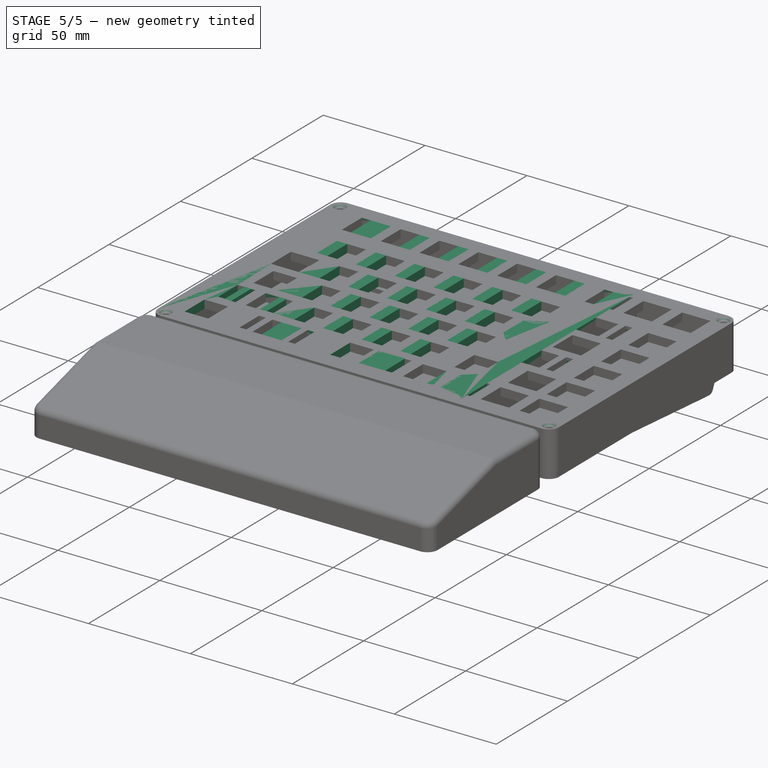
[diagram: stage 5 of 5 — iso view after this stage's code; geometry added in this stage tinted green]
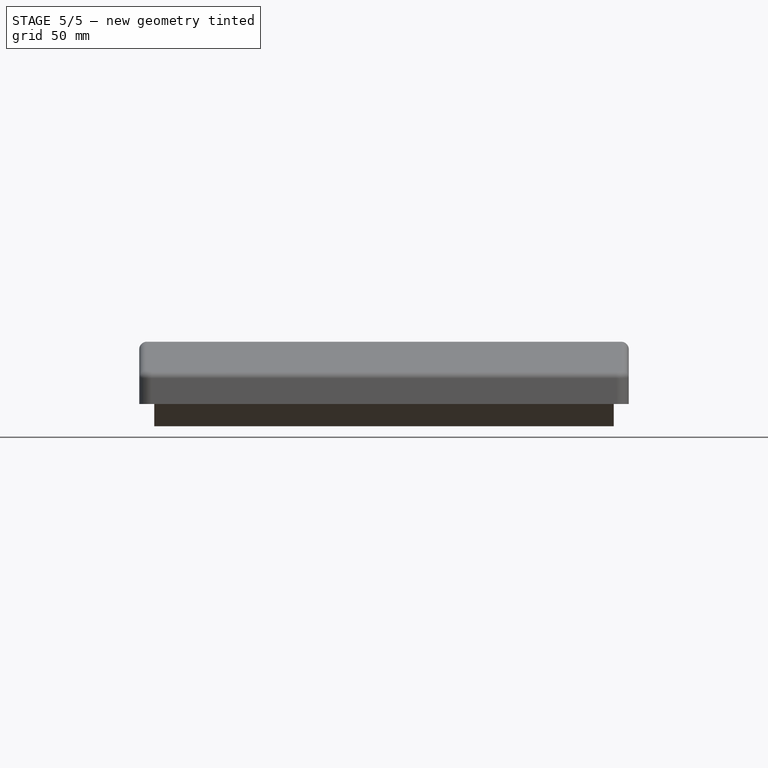
[diagram: stage 5 of 5 — front view after this stage's code; geometry added in this stage tinted green]
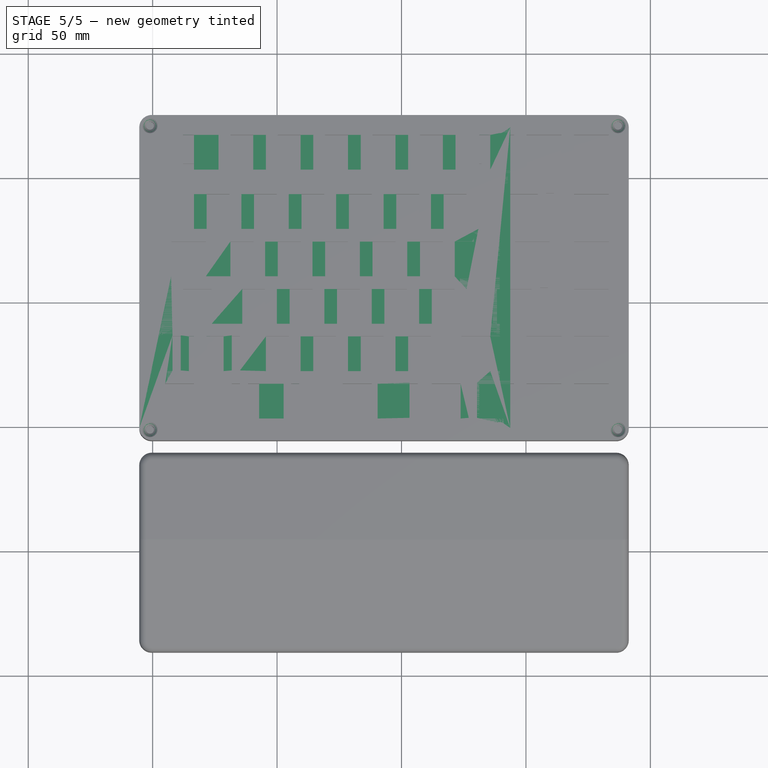
[diagram: stage 5 of 5 — top view after this stage's code; geometry added in this stage tinted green]
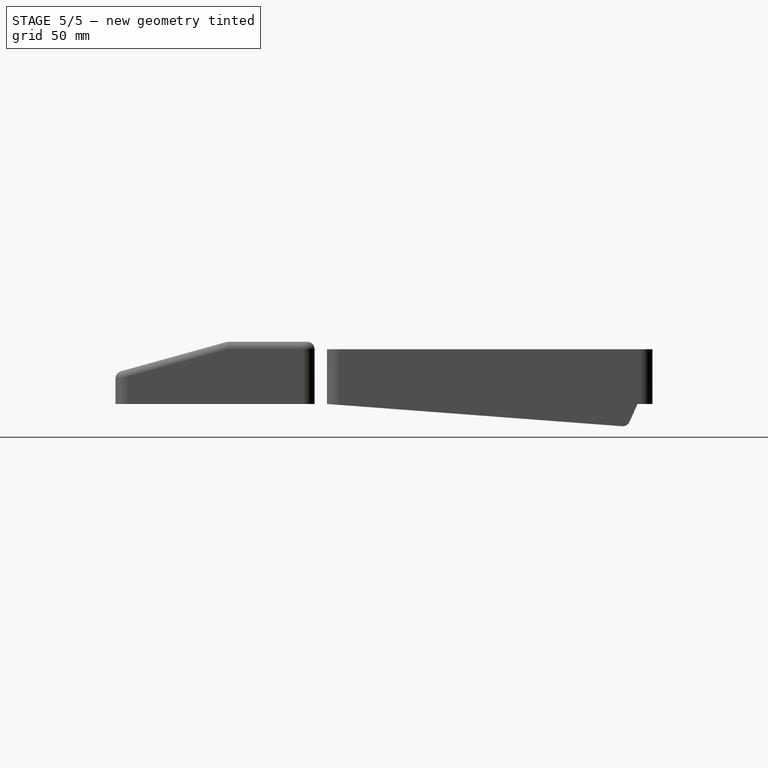
[diagram: stage 5 of 5 — right view after this stage's code; geometry added in this stage tinted green]
FEATURE [Spreadsheet::Sheet] Parameters
  cells = A1='PlateThickness; B1(PlateThickness)=4; A2='OuterMargin; B2(OuterMargin)=8; A3='CornerRadius; B3(CornerRadius)=5; A4='BodyWallThickness; B4(BodyWallThickness)=3; A5='BodyHeight; B5(BodyHeight)=18; A6='RestSideMargin; B6(RestSideMargin)=6; A7='RestRearMargin; B7(RestRearMargin)=6; A8='RestSlantWidth; B8(RestSlantWidth)=10; A9='RestSlantAngleDeg; B9(RestSlantAngleDeg)=70; A10='RestRearCornerFillet; B10(RestRearCornerFillet)=3; A11='M3ClearanceDiameter; B11(M3ClearanceDiameter)=3.2; A12='M3CountersinkDiameter; B12(M3CountersinkDiameter)=6; A13='M3CountersinkDepth; B13(M3CountersinkDepth)=1.5; A14='SpredsertM3LocatingDiameter; B14(SpredsertM3LocatingDiameter)=4; A15='SpredsertM3Length; B15(SpredsertM3Length)=5; A16='M3ScrewTipRelief; B16(M3ScrewTipRelief)=2; A17='InsertBossDiameter; B17(InsertBossDiameter)=8; A18='ScrewCornerOffset; B18(ScrewCornerOffset)=4.3; A19='StabClipPlateThickness; B19(StabClipPlateThickness)=1.4; A20='StabClipLedgeWidth; B20(StabClipLedgeWidth)=1.2; A21='StabCutoutMaxWidth; B21(StabCutoutMaxWidth)=5; A22='StabCutoutHeight; B22(StabCutoutHeight)=14.1; A23='KeyholeSize; B23(KeyholeSize)=13.96; A24='PalmRestDepth; B24(PalmRestDepth)=80; A25='PalmRestRearHeight; B25(PalmRestRearHeight)=25; A26='PalmRestFrontHeight; B26(PalmRestFrontHeight)=12; A27='PalmRestFlatDepth; B27(PalmRestFlatDepth)=35; A28='PalmRestGap; B28(PalmRestGap)=5; A29='PalmRestFilletRadius; B29(PalmRestFilletRadius)=3; A30='Rp2040ZeroLength; B30(Rp2040ZeroLength)=25; A31='Rp2040ZeroWidth; B31(Rp2040ZeroWidth)=18; A32='Rp2040ZeroPcbThickness; B32(Rp2040ZeroPcbThickness)=1.6; A33='Rp2040SeatClearance; B33(Rp2040SeatClearance)=0.6; A34='Rp2040SeatDepth; B34(Rp2040SeatDepth)=1; A35='Rp2040StopThickness; B35(Rp2040StopThickness)=3; A36='Rp2040StopHeight; B36(Rp2040StopHeight)=2; A37='UsbOpeningWidth; B37(UsbOpeningWidth)=10; A38='UsbOpeningHeight; B38(UsbOpeningHeight)=6; A39='UsbOpeningRadius; B39(UsbOpeningRadius)=1.5; A40='UsbBezelWidth; B40(UsbBezelWidth)=14; A41='UsbBezelHeight; B41(UsbBezelHeight)=10; A42='UsbBezelRadius; B42(UsbBezelRadius)=5; A43='UsbBezelDepth; B43(UsbBezelDepth)=1; A44='UsbEdgeOffset; B44(UsbEdgeOffset)=37; A45='TrsJackEdgeOffset; B45(TrsJackEdgeOffset)=17.5; A46='TrsJackHoleDiameter; B46(TrsJackHoleDiameter)=6.5; A47='TrsJackAxisHeight; B47(TrsJackAxisHeight)=6.5; A48='TrsJackBodyLength; B48(TrsJackBodyLength)=15; A49='TrsJackBodyWidth; B49(TrsJackBodyWidth)=9; A50='TrsJackBodyHeight; B50(TrsJackBodyHeight)=7; A51='TrsJackNoseDiameter; B51(TrsJackNoseDiameter)=5; A52='TrsJackNoseLength; B52(TrsJackNoseLength)=2; A53='TrsJackStopWidth; B53(TrsJackStopWidth)=12; A54='TrsJackStopThickness; B54(TrsJackStopThickness)=3; A55='TrsJackStopHeight; B55(TrsJackStopHeight)=2; A56='TrsJackStopClearance; B56(TrsJackStopClearance)=0.2; A57='DisplayGap; B57(DisplayGap)=25
FEATURE [App::Point] Origin001  label="원점"
  Role = Origin
FEATURE [Sketcher::SketchObject] Left_Plate_Outline
  ArcFitTolerance = 1e-06
  ExternalTypes = [0]
  FullyConstrained = false
  MakeInternals = false
  _ExternalGeoVersion = 1
  sketch-geometry (8):
    g0: LineSegment StartX=-0.38035 StartY=-5.791 StartZ=0 EndX=138.682 EndY=-5.791 EndZ=0
    g1: ArcOfCircle CenterX=138.682 CenterY=-0.791 CenterZ=0 NormalX=0 NormalY=0 NormalZ=1 AngleXU=0 Radius=5 StartAngle=4.71239 EndAngle=6.28319
    g2: LineSegment StartX=143.682 StartY=-0.791 StartZ=0 EndX=143.682 EndY=119.971 EndZ=0
    g3: ArcOfCircle CenterX=138.682 CenterY=119.971 CenterZ=0 NormalX=0 NormalY=0 NormalZ=1 AngleXU=0 Radius=5 StartAngle=0 EndAngle=1.5708
    g4: LineSegment StartX=138.682 StartY=124.971 StartZ=0 EndX=-0.38035 EndY=124.971 EndZ=0
    g5: ArcOfCircle CenterX=-0.38035 CenterY=119.971 CenterZ=0 NormalX=0 NormalY=0 NormalZ=1 AngleXU=0 Radius=5 StartAngle=1.5708 EndAngle=3.14159
    g6: LineSegment StartX=-5.38035 StartY=119.971 StartZ=0 EndX=-5.38035 EndY=-0.791 EndZ=0
    g7: ArcOfCircle CenterX=-0.38035 CenterY=-0.791 CenterZ=0 NormalX=0 NormalY=0 NormalZ=1 AngleXU=0 Radius=5 StartAngle=3.14159 EndAngle=4.71239
FEATURE [PartDesign::Pad] Left_Plate_Pad
  Direction = (0,0,1)
  Length = 4
  Length2 = 10
  Profile = -> Left_Plate_Outline
  Refine = true
  SideType = 0
  Suppressed = false
  Type = 0
  Type2 = 0
  expr: Length = Parameters.PlateThickness
FEATURE [Sketcher::SketchObject] Left_Key_Cutouts
  ArcFitTolerance = 1e-06
  ExternalTypes = [0]
  FullyConstrained = false
  MakeInternals = false
  _ExternalGeoVersion = 1
  sketch-geometry (164):
    g0: LineSegment StartX=5.02065 StartY=16.9391 StartZ=0 EndX=18.9807 EndY=16.9391 EndZ=0
    g1: LineSegment StartX=18.9807 StartY=16.9391 StartZ=0 EndX=18.9807 EndY=2.97907 EndZ=0
    g2: LineSegment StartX=18.9807 StartY=2.97907 StartZ=0 EndX=5.02065 EndY=2.97907 EndZ=0
    g3: LineSegment StartX=5.02065 StartY=2.97907 StartZ=0 EndX=5.02065 EndY=16.9391 EndZ=0
    g4: LineSegment StartX=28.8324 StartY=16.9391 StartZ=0 EndX=42.7924 EndY=16.9391 EndZ=0
    g5: LineSegment StartX=42.7924 StartY=16.9391 StartZ=0 EndX=42.7924 EndY=2.97907 EndZ=0
    g6: LineSegment StartX=42.7924 StartY=2.97907 StartZ=0 EndX=28.8324 EndY=2.97907 EndZ=0
    g7: LineSegment StartX=28.8324 StartY=2.97907 StartZ=0 EndX=28.8324 EndY=16.9391 EndZ=0
    g8: LineSegment StartX=52.6456 StartY=16.9391 StartZ=0 EndX=66.6056 EndY=16.9391 EndZ=0
    g9: LineSegment StartX=66.6056 StartY=16.9391 StartZ=0 EndX=66.6056 EndY=2.97907 EndZ=0
    g10: LineSegment StartX=66.6056 StartY=2.97907 StartZ=0 EndX=52.6456 EndY=2.97907 EndZ=0
    g11: LineSegment StartX=52.6456 StartY=2.97907 StartZ=0 EndX=52.6456 EndY=16.9391 EndZ=0
    g12: LineSegment StartX=76.4574 StartY=16.9391 StartZ=0 EndX=90.4175 EndY=16.9391 EndZ=0
    g13: LineSegment StartX=90.4175 StartY=16.9391 StartZ=0 EndX=90.4175 EndY=2.97907 EndZ=0
    g14: LineSegment StartX=90.4175 StartY=2.97907 StartZ=0 EndX=76.4574 EndY=2.97907 EndZ=0
    g15: LineSegment StartX=76.4574 StartY=2.97907 StartZ=0 EndX=76.4574 EndY=16.9391 EndZ=0
    g16: LineSegment StartX=109.795 StartY=16.9391 StartZ=0 EndX=123.755 EndY=16.9391 EndZ=0
    g17: LineSegment StartX=123.755 StartY=16.9391 StartZ=0 EndX=123.755 EndY=2.97907 EndZ=0
    g18: LineSegment StartX=123.755 StartY=2.97907 StartZ=0 EndX=109.795 EndY=2.97907 EndZ=0
    g19: LineSegment StartX=109.795 StartY=2.97907 StartZ=0 EndX=109.795 EndY=16.9391 EndZ=0
    g20: LineSegment StartX=14.5456 StartY=35.989 StartZ=0 EndX=28.5056 EndY=35.989 EndZ=0
    g21: LineSegment StartX=28.5056 StartY=35.989 StartZ=0 EndX=28.5056 EndY=22.029 EndZ=0
    g22: LineSegment StartX=28.5056 StartY=22.029 StartZ=0 EndX=14.5456 EndY=22.029 EndZ=0
    g23: LineSegment StartX=14.5456 StartY=22.029 StartZ=0 EndX=14.5456 EndY=35.989 EndZ=0
    g24: LineSegment StartX=45.5018 StartY=35.989 StartZ=0 EndX=59.4618 EndY=35.989 EndZ=0
    g25: LineSegment StartX=59.4618 StartY=35.989 StartZ=0 EndX=59.4618 EndY=22.029 EndZ=0
    g26: LineSegment StartX=59.4618 StartY=22.029 StartZ=0 EndX=45.5018 EndY=22.029 EndZ=0
    g27: LineSegment StartX=45.5018 StartY=22.029 StartZ=0 EndX=45.5018 EndY=35.989 EndZ=0
    g28: LineSegment StartX=64.5518 StartY=35.989 StartZ=0 EndX=78.5118 EndY=35.989 EndZ=0
    g29: LineSegment StartX=78.5118 StartY=35.989 StartZ=0 EndX=78.5118 EndY=22.029 EndZ=0
    g30: LineSegment StartX=78.5118 StartY=22.029 StartZ=0 EndX=64.5518 EndY=22.029 EndZ=0
    g31: LineSegment StartX=64.5518 StartY=22.029 StartZ=0 EndX=64.5518 EndY=35.989 EndZ=0
    g32: LineSegment StartX=83.6018 StartY=35.989 StartZ=0 EndX=97.5619 EndY=35.989 EndZ=0
    g33: LineSegment StartX=97.5619 StartY=35.989 StartZ=0 EndX=97.5619 EndY=22.029 EndZ=0
    g34: LineSegment StartX=97.5619 StartY=22.029 StartZ=0 EndX=83.6018 EndY=22.029 EndZ=0
    g35: LineSegment StartX=83.6018 StartY=22.029 StartZ=0 EndX=83.6018 EndY=35.989 EndZ=0
    g36: LineSegment StartX=102.652 StartY=35.989 StartZ=0 EndX=116.612 EndY=35.989 EndZ=0
    g37: LineSegment StartX=116.612 StartY=35.989 StartZ=0 EndX=116.612 EndY=22.029 EndZ=0
    g38: LineSegment StartX=116.612 StartY=22.029 StartZ=0 EndX=102.652 EndY=22.029 EndZ=0
    g39: LineSegment StartX=102.652 StartY=22.029 StartZ=0 EndX=102.652 EndY=35.989 EndZ=0
    g40: LineSegment StartX=121.702 StartY=35.989 StartZ=0 EndX=135.662 EndY=35.989 EndZ=0
    g41: LineSegment StartX=135.662 StartY=35.989 StartZ=0 EndX=135.662 EndY=22.029 EndZ=0
    g42: LineSegment StartX=135.662 StartY=22.029 StartZ=0 EndX=121.702 EndY=22.029 EndZ=0
    g43: LineSegment StartX=121.702 StartY=22.029 StartZ=0 EndX=121.702 EndY=35.989 EndZ=0
    g44: LineSegment StartX=9.78246 StartY=55.0391 StartZ=0 EndX=23.7425 EndY=55.0391 EndZ=0
    g45: LineSegment StartX=23.7425 StartY=55.0391 StartZ=0 EndX=23.7425 EndY=41.079 EndZ=0
    g46: LineSegment StartX=23.7425 StartY=41.079 StartZ=0 EndX=9.78246 EndY=41.079 EndZ=0
    g47: LineSegment StartX=9.78246 StartY=41.079 StartZ=0 EndX=9.78246 EndY=55.0391 EndZ=0
    g48: LineSegment StartX=35.9768 StartY=55.0391 StartZ=0 EndX=49.9369 EndY=55.0391 EndZ=0
    g49: LineSegment StartX=49.9369 StartY=55.0391 StartZ=0 EndX=49.9369 EndY=41.079 EndZ=0
    g50: LineSegment StartX=49.9369 StartY=41.079 StartZ=0 EndX=35.9768 EndY=41.079 EndZ=0
    g51: LineSegment StartX=35.9768 StartY=41.079 StartZ=0 EndX=35.9768 EndY=55.0391 EndZ=0
    g52: LineSegment StartX=55.0268 StartY=55.0391 StartZ=0 EndX=68.9869 EndY=55.0391 EndZ=0
    g53: LineSegment StartX=68.9869 StartY=55.0391 StartZ=0 EndX=68.9869 EndY=41.079 EndZ=0
    g54: LineSegment StartX=68.9869 StartY=41.079 StartZ=0 EndX=55.0268 EndY=41.079 EndZ=0
    g55: LineSegment StartX=55.0268 StartY=41.079 StartZ=0 EndX=55.0268 EndY=55.0391 EndZ=0
    g56: LineSegment StartX=74.0768 StartY=55.0391 StartZ=0 EndX=88.0369 EndY=55.0391 EndZ=0
    g57: LineSegment StartX=88.0369 StartY=55.0391 StartZ=0 EndX=88.0369 EndY=41.079 EndZ=0
    g58: LineSegment StartX=88.0369 StartY=41.079 StartZ=0 EndX=74.0768 EndY=41.079 EndZ=0
    g59: LineSegment StartX=74.0768 StartY=41.079 StartZ=0 EndX=74.0768 EndY=55.0391 EndZ=0
    g60: LineSegment StartX=93.1271 StartY=55.0391 StartZ=0 EndX=107.087 EndY=55.0391 EndZ=0
    g61: LineSegment StartX=107.087 StartY=55.0391 StartZ=0 EndX=107.087 EndY=41.079 EndZ=0
    g62: LineSegment StartX=107.087 StartY=41.079 StartZ=0 EndX=93.1271 EndY=41.079 EndZ=0
    g63: LineSegment StartX=93.1271 StartY=41.079 StartZ=0 EndX=93.1271 EndY=55.0391 EndZ=0
    g64: LineSegment StartX=112.177 StartY=55.0391 StartZ=0 EndX=126.137 EndY=55.0391 EndZ=0
    g65: LineSegment StartX=126.137 StartY=55.0391 StartZ=0 EndX=126.137 EndY=41.079 EndZ=0
    g66: LineSegment StartX=126.137 StartY=41.079 StartZ=0 EndX=112.177 EndY=41.079 EndZ=0
    g67: LineSegment StartX=112.177 StartY=41.079 StartZ=0 EndX=112.177 EndY=55.0391 EndZ=0
    g68: LineSegment StartX=7.40193 StartY=74.0891 StartZ=0 EndX=21.3619 EndY=74.0891 EndZ=0
    g69: LineSegment StartX=21.3619 StartY=74.0891 StartZ=0 EndX=21.3619 EndY=60.129 EndZ=0
    g70: LineSegment StartX=21.3619 StartY=60.129 StartZ=0 EndX=7.40193 EndY=60.129 EndZ=0
    g71: LineSegment StartX=7.40193 StartY=60.129 StartZ=0 EndX=7.40193 EndY=74.0891 EndZ=0
    g72: LineSegment StartX=31.2143 StartY=74.0891 StartZ=0 EndX=45.1744 EndY=74.0891 EndZ=0
    g73: LineSegment StartX=45.1744 StartY=74.0891 StartZ=0 EndX=45.1744 EndY=60.129 EndZ=0
    g74: LineSegment StartX=45.1744 StartY=60.129 StartZ=0 EndX=31.2143 EndY=60.129 EndZ=0
    g75: LineSegment StartX=31.2143 StartY=60.129 StartZ=0 EndX=31.2143 EndY=74.0891 EndZ=0
    g76: LineSegment StartX=50.2643 StartY=74.0891 StartZ=0 EndX=64.2244 EndY=74.0891 EndZ=0
    g77: LineSegment StartX=64.2244 StartY=74.0891 StartZ=0 EndX=64.2244 EndY=60.129 EndZ=0
    g78: LineSegment StartX=64.2244 StartY=60.129 StartZ=0 EndX=50.2643 EndY=60.129 EndZ=0
    g79: LineSegment StartX=50.2643 StartY=60.129 StartZ=0 EndX=50.2643 EndY=74.0891 EndZ=0
    g80: LineSegment StartX=69.3144 StartY=74.0891 StartZ=0 EndX=83.2744 EndY=74.0891 EndZ=0
    g81: LineSegment StartX=83.2744 StartY=74.0891 StartZ=0 EndX=83.2744 EndY=60.129 EndZ=0
    g82: LineSegment StartX=83.2744 StartY=60.129 StartZ=0 EndX=69.3144 EndY=60.129 EndZ=0
    g83: LineSegment StartX=69.3144 StartY=60.129 StartZ=0 EndX=69.3144 EndY=74.0891 EndZ=0
    g84: LineSegment StartX=88.3643 StartY=74.0891 StartZ=0 EndX=102.324 EndY=74.0891 EndZ=0
    g85: LineSegment StartX=102.324 StartY=74.0891 StartZ=0 EndX=102.324 EndY=60.129 EndZ=0
    g86: LineSegment StartX=102.324 StartY=60.129 StartZ=0 EndX=88.3643 EndY=60.129 EndZ=0
    g87: LineSegment StartX=88.3643 StartY=60.129 StartZ=0 EndX=88.3643 EndY=74.0891 EndZ=0
    g88: LineSegment StartX=107.414 StartY=74.0891 StartZ=0 EndX=121.374 EndY=74.0891 EndZ=0
    g89: LineSegment StartX=121.374 StartY=74.0891 StartZ=0 EndX=121.374 EndY=60.129 EndZ=0
    g90: LineSegment StartX=121.374 StartY=60.129 StartZ=0 EndX=107.414 EndY=60.129 EndZ=0
    g91: LineSegment StartX=107.414 StartY=60.129 StartZ=0 EndX=107.414 EndY=74.0891 EndZ=0
    g92: LineSegment StartX=2.63942 StartY=93.1391 StartZ=0 EndX=16.5994 EndY=93.1391 EndZ=0
    g93: LineSegment StartX=16.5994 StartY=93.1391 StartZ=0 EndX=16.5994 EndY=79.1791 EndZ=0
    g94: LineSegment StartX=16.5994 StartY=79.1791 StartZ=0 EndX=2.63942 EndY=79.1791 EndZ=0
    g95: LineSegment StartX=2.63942 StartY=79.1791 StartZ=0 EndX=2.63942 EndY=93.1391 EndZ=0
    g96: LineSegment StartX=21.6893 StartY=93.1391 StartZ=0 EndX=35.6493 EndY=93.1391 EndZ=0
    g97: LineSegment StartX=35.6493 StartY=93.1391 StartZ=0 EndX=35.6493 EndY=79.1791 EndZ=0
    g98: LineSegment StartX=35.6493 StartY=79.1791 StartZ=0 EndX=21.6893 EndY=79.1791 EndZ=0
    g99: LineSegment StartX=21.6893 StartY=79.1791 StartZ=0 EndX=21.6893 EndY=93.1391 EndZ=0
    g100: LineSegment StartX=40.7394 StartY=93.1391 StartZ=0 EndX=54.6994 EndY=93.1391 EndZ=0
    g101: LineSegment StartX=54.6994 StartY=93.1391 StartZ=0 EndX=54.6994 EndY=79.1791 EndZ=0
    g102: LineSegment StartX=54.6994 StartY=79.1791 StartZ=0 EndX=40.7394 EndY=79.1791 EndZ=0
    g103: LineSegment StartX=40.7394 StartY=79.1791 StartZ=0 EndX=40.7394 EndY=93.1391 EndZ=0
    g104: LineSegment StartX=59.7893 StartY=93.1391 StartZ=0 EndX=73.7494 EndY=93.1391 EndZ=0
    g105: LineSegment StartX=73.7494 StartY=93.1391 StartZ=0 EndX=73.7494 EndY=79.1791 EndZ=0
    g106: LineSegment StartX=73.7494 StartY=79.1791 StartZ=0 EndX=59.7893 EndY=79.1791 EndZ=0
    g107: LineSegment StartX=59.7893 StartY=79.1791 StartZ=0 EndX=59.7893 EndY=93.1391 EndZ=0
    g108: LineSegment StartX=78.8393 StartY=93.1391 StartZ=0 EndX=92.7994 EndY=93.1391 EndZ=0
    g109: LineSegment StartX=92.7994 StartY=93.1391 StartZ=0 EndX=92.7994 EndY=79.1791 EndZ=0
    g110: LineSegment StartX=92.7994 StartY=79.1791 StartZ=0 EndX=78.8393 EndY=79.1791 EndZ=0
    g111: LineSegment StartX=78.8393 StartY=79.1791 StartZ=0 EndX=78.8393 EndY=93.1391 EndZ=0
    g112: LineSegment StartX=97.8886 StartY=93.1391 StartZ=0 EndX=111.849 EndY=93.1391 EndZ=0
    g113: LineSegment StartX=111.849 StartY=93.1391 StartZ=0 EndX=111.849 EndY=79.1791 EndZ=0
    g114: LineSegment StartX=111.849 StartY=79.1791 StartZ=0 EndX=97.8886 EndY=79.1791 EndZ=0
    g115: LineSegment StartX=97.8886 StartY=79.1791 StartZ=0 EndX=97.8886 EndY=93.1391 EndZ=0
    g116: LineSegment StartX=116.939 StartY=93.1391 StartZ=0 EndX=130.899 EndY=93.1391 EndZ=0
    g117: LineSegment StartX=130.899 StartY=93.1391 StartZ=0 EndX=130.899 EndY=79.1791 EndZ=0
    g118: LineSegment StartX=130.899 StartY=79.1791 StartZ=0 EndX=116.939 EndY=79.1791 EndZ=0
    g119: LineSegment StartX=116.939 StartY=79.1791 StartZ=0 EndX=116.939 EndY=93.1391 EndZ=0
    g120: LineSegment StartX=2.63942 StartY=116.951 StartZ=0 EndX=16.5994 EndY=116.951 EndZ=0
    g121: LineSegment StartX=16.5994 StartY=116.951 StartZ=0 EndX=16.5994 EndY=102.991 EndZ=0
    g122: LineSegment StartX=16.5994 StartY=102.991 StartZ=0 EndX=2.63942 EndY=102.991 EndZ=0
    g123: LineSegment StartX=2.63942 StartY=102.991 StartZ=0 EndX=2.63942 EndY=116.951 EndZ=0
    g124: LineSegment StartX=26.4518 StartY=116.951 StartZ=0 EndX=40.4119 EndY=116.951 EndZ=0
    g125: LineSegment StartX=40.4119 StartY=116.951 StartZ=0 EndX=40.4119 EndY=102.991 EndZ=0
    g126: LineSegment StartX=40.4119 StartY=102.991 StartZ=0 EndX=26.4518 EndY=102.991 EndZ=0
    g127: LineSegment StartX=26.4518 StartY=102.991 StartZ=0 EndX=26.4518 EndY=116.951 EndZ=0
    g128: LineSegment StartX=45.5018 StartY=116.951 StartZ=0 EndX=59.4618 EndY=116.951 EndZ=0
    g129: LineSegment StartX=59.4618 StartY=116.951 StartZ=0 EndX=59.4618 EndY=102.991 EndZ=0
    g130: LineSegment StartX=59.4618 StartY=102.991 StartZ=0 EndX=45.5018 EndY=102.991 EndZ=0
    g131: LineSegment StartX=45.5018 StartY=102.991 StartZ=0 EndX=45.5018 EndY=116.951 EndZ=0
    g132: LineSegment StartX=64.5518 StartY=116.951 StartZ=0 EndX=78.5118 EndY=116.951 EndZ=0
    g133: LineSegment StartX=78.5118 StartY=116.951 StartZ=0 EndX=78.5118 EndY=102.991 EndZ=0
    g134: LineSegment StartX=78.5118 StartY=102.991 StartZ=0 EndX=64.5518 EndY=102.991 EndZ=0
    g135: LineSegment StartX=64.5518 StartY=102.991 StartZ=0 EndX=64.5518 EndY=116.951 EndZ=0
    g136: LineSegment StartX=83.6018 StartY=116.951 StartZ=0 EndX=97.5619 EndY=116.951 EndZ=0
    g137: LineSegment StartX=97.5619 StartY=116.951 StartZ=0 EndX=97.5619 EndY=102.991 EndZ=0
    g138: LineSegment StartX=97.5619 StartY=102.991 StartZ=0 EndX=83.6018 EndY=102.991 EndZ=0
    g139: LineSegment StartX=83.6018 StartY=102.991 StartZ=0 EndX=83.6018 EndY=116.951 EndZ=0
    g140: LineSegment StartX=102.652 StartY=116.951 StartZ=0 EndX=116.612 EndY=116.951 EndZ=0
    g141: LineSegment StartX=116.612 StartY=116.951 StartZ=0 EndX=116.612 EndY=102.991 EndZ=0
    g142: LineSegment StartX=116.612 StartY=102.991 StartZ=0 EndX=102.652 EndY=102.991 EndZ=0
    g143: LineSegment StartX=102.652 StartY=102.991 StartZ=0 EndX=102.652 EndY=116.951 EndZ=0
    g144: LineSegment StartX=121.702 StartY=116.951 StartZ=0 EndX=135.662 EndY=116.951 EndZ=0
    g145: LineSegment StartX=135.662 StartY=116.951 StartZ=0 EndX=135.662 EndY=102.991 EndZ=0
    g146: LineSegment StartX=135.662 StartY=102.991 StartZ=0 EndX=121.702 EndY=102.991 EndZ=0
    g147: LineSegment StartX=121.702 StartY=102.991 StartZ=0 EndX=121.702 EndY=116.951 EndZ=0
    g148: LineSegment StartX=103.226 StartY=17.3593 StartZ=0 EndX=106.525 EndY=17.3593 EndZ=0
    g149: LineSegment StartX=106.525 StartY=17.3593 StartZ=0 EndX=106.525 EndY=3.25935 EndZ=0
    g150: LineSegment StartX=106.525 StartY=3.25935 StartZ=0 EndX=103.226 EndY=3.25935 EndZ=0
    g151: LineSegment StartX=103.226 StartY=3.25935 StartZ=0 EndX=103.226 EndY=17.3593 EndZ=0
    g152: LineSegment StartX=127.026 StartY=17.3593 StartZ=0 EndX=130.325 EndY=17.3593 EndZ=0
    g153: LineSegment StartX=130.325 StartY=17.3593 StartZ=0 EndX=130.325 EndY=3.25935 EndZ=0
    g154: LineSegment StartX=130.325 StartY=3.25935 StartZ=0 EndX=127.026 EndY=3.25935 EndZ=0
    g155: LineSegment StartX=127.026 StartY=3.25935 StartZ=0 EndX=127.026 EndY=17.3593 EndZ=0
    g156: LineSegment StartX=7.97609 StartY=36.4094 StartZ=0 EndX=11.2751 EndY=36.4094 EndZ=0
    g157: LineSegment StartX=11.2751 StartY=36.4094 StartZ=0 EndX=11.2751 EndY=22.3094 EndZ=0
    g158: LineSegment StartX=11.2751 StartY=22.3094 StartZ=0 EndX=7.97609 EndY=22.3094 EndZ=0
    g159: LineSegment StartX=7.97609 StartY=22.3094 StartZ=0 EndX=7.97609 EndY=36.4094 EndZ=0
    g160: LineSegment StartX=31.7748 StartY=36.4094 StartZ=0 EndX=35.0752 EndY=36.4094 EndZ=0
    g161: LineSegment StartX=35.0752 StartY=36.4094 StartZ=0 EndX=35.0752 EndY=22.3094 EndZ=0
    g162: LineSegment StartX=35.0752 StartY=22.3094 StartZ=0 EndX=31.7748 EndY=22.3094 EndZ=0
    g163: LineSegment StartX=31.7748 StartY=22.3094 StartZ=0 EndX=31.7748 EndY=36.4094 EndZ=0
FEATURE [PartDesign::Pocket] Left_Key_Pockets
  BaseFeature = -> Left_Plate_Pad
  Direction = (0,0,-1)
  Length = 5
  Length2 = 5
  Profile = -> Left_Key_Cutouts
  Refine = true
  SideType = 2
  Suppressed = false
  Type = 1
  Type2 = 0
FEATURE [Sketcher::SketchObject] Left_Screw_Holes
  ArcFitTolerance = 1e-06
  ExternalTypes = [0]
  FullyConstrained = false
  MakeInternals = false
  _ExternalGeoVersion = 1
  sketch-geometry (4):
    g0: Circle CenterX=-1.08035 CenterY=-1.491 CenterZ=0 NormalX=0 NormalY=0 NormalZ=1 AngleXU=0 Radius=1.6
    g1: Circle CenterX=139.382 CenterY=-1.491 CenterZ=0 NormalX=0 NormalY=0 NormalZ=1 AngleXU=0 Radius=1.6
    g2: Circle CenterX=-1.08035 CenterY=120.671 CenterZ=0 NormalX=0 NormalY=0 NormalZ=1 AngleXU=0 Radius=1.6
    g3: Circle CenterX=139.382 CenterY=120.671 CenterZ=0 NormalX=0 NormalY=0 NormalZ=1 AngleXU=0 Radius=1.6
FEATURE [PartDesign::Pocket] Left_Screw_Pockets
  BaseFeature = -> Left_Key_Pockets
  Direction = (0,0,-1)
  Length = 5
  Length2 = 5
  Profile = -> Left_Screw_Holes
  Refine = true
  SideType = 2
  Suppressed = false
  Type = 1
  Type2 = 0
FEATURE [PartDesign::Chamfer] Left_Screw_Countersink
  Angle = 45
  Base = -> Left_Screw_Pockets [Edge189,Edge242,Edge307,Edge356]
  BaseFeature = -> Left_Screw_Pockets
  ChamferType = 1
  FlipDirection = false
  Refine = true
  Size = 1.4
  Size2 = 1.5
  SupportTransform = false
  Suppressed = false
  UseAllEdges = false
FEATURE [Sketcher::SketchObject] Left_Stab_Relief
  ArcFitTolerance = 1e-06
  ExternalTypes = [0]
  FullyConstrained = false
  MakeInternals = false
  _ExternalGeoVersion = 1
  sketch-geometry (32):
    g0: LineSegment StartX=103.226 StartY=17.3593 StartZ=0 EndX=106.525 EndY=17.3593 EndZ=0
    g1: LineSegment StartX=106.525 StartY=17.3593 StartZ=0 EndX=106.525 EndY=18.5593 EndZ=0
    g2: LineSegment StartX=106.525 StartY=18.5593 StartZ=0 EndX=103.226 EndY=18.5593 EndZ=0
    g3: LineSegment StartX=103.226 StartY=18.5593 StartZ=0 EndX=103.226 EndY=17.3593 EndZ=0
    g4: LineSegment StartX=103.226 StartY=2.05935 StartZ=0 EndX=106.525 EndY=2.05935 EndZ=0
    g5: LineSegment StartX=106.525 StartY=2.05935 StartZ=0 EndX=106.525 EndY=3.25935 EndZ=0
    g6: LineSegment StartX=106.525 StartY=3.25935 StartZ=0 EndX=103.226 EndY=3.25935 EndZ=0
    g7: LineSegment StartX=103.226 StartY=3.25935 StartZ=0 EndX=103.226 EndY=2.05935 EndZ=0
    g8: LineSegment StartX=127.026 StartY=17.3593 StartZ=0 EndX=130.325 EndY=17.3593 EndZ=0
    g9: LineSegment StartX=130.325 StartY=17.3593 StartZ=0 EndX=130.325 EndY=18.5593 EndZ=0
    g10: LineSegment StartX=130.325 StartY=18.5593 StartZ=0 EndX=127.026 EndY=18.5593 EndZ=0
    g11: LineSegment StartX=127.026 StartY=18.5593 StartZ=0 EndX=127.026 EndY=17.3593 EndZ=0
    g12: LineSegment StartX=127.026 StartY=2.05935 StartZ=0 EndX=130.325 EndY=2.05935 EndZ=0
    g13: LineSegment StartX=130.325 StartY=2.05935 StartZ=0 EndX=130.325 EndY=3.25935 EndZ=0
    g14: LineSegment StartX=130.325 StartY=3.25935 StartZ=0 EndX=127.026 EndY=3.25935 EndZ=0
    g15: LineSegment StartX=127.026 StartY=3.25935 StartZ=0 EndX=127.026 EndY=2.05935 EndZ=0
    g16: LineSegment StartX=7.97609 StartY=36.4094 StartZ=0 EndX=11.2751 EndY=36.4094 EndZ=0
    g17: LineSegment StartX=11.2751 StartY=36.4094 StartZ=0 EndX=11.2751 EndY=37.6094 EndZ=0
    g18: LineSegment StartX=11.2751 StartY=37.6094 StartZ=0 EndX=7.97609 EndY=37.6094 EndZ=0
    g19: LineSegment StartX=7.97609 StartY=37.6094 StartZ=0 EndX=7.97609 EndY=36.4094 EndZ=0
    g20: LineSegment StartX=7.97609 StartY=21.1094 StartZ=0 EndX=11.2751 EndY=21.1094 EndZ=0
    g21: LineSegment StartX=11.2751 StartY=21.1094 StartZ=0 EndX=11.2751 EndY=22.3094 EndZ=0
    g22: LineSegment StartX=11.2751 StartY=22.3094 StartZ=0 EndX=7.97609 EndY=22.3094 EndZ=0
    g23: LineSegment StartX=7.97609 StartY=22.3094 StartZ=0 EndX=7.97609 EndY=21.1094 EndZ=0
    g24: LineSegment StartX=31.7748 StartY=36.4094 StartZ=0 EndX=35.0752 EndY=36.4094 EndZ=0
    g25: LineSegment StartX=35.0752 StartY=36.4094 StartZ=0 EndX=35.0752 EndY=37.6094 EndZ=0
    g26: LineSegment StartX=35.0752 StartY=37.6094 StartZ=0 EndX=31.7748 EndY=37.6094 EndZ=0
    g27: LineSegment StartX=31.7748 StartY=37.6094 StartZ=0 EndX=31.7748 EndY=36.4094 EndZ=0
    g28: LineSegment StartX=31.7748 StartY=21.1094 StartZ=0 EndX=35.0752 EndY=21.1094 EndZ=0
    g29: LineSegment StartX=35.0752 StartY=21.1094 StartZ=0 EndX=35.0752 EndY=22.3094 EndZ=0
    g30: LineSegment StartX=35.0752 StartY=22.3094 StartZ=0 EndX=31.7748 EndY=22.3094 EndZ=0
    g31: LineSegment StartX=31.7748 StartY=22.3094 StartZ=0 EndX=31.7748 EndY=21.1094 EndZ=0
FEATURE [PartDesign::Pocket] Left_Stab_Relief_Pocket
  BaseFeature = -> Left_Screw_Countersink
  Direction = (0,0,-1)
  Length = 2.6
  Length2 = 5
  Profile = -> Left_Stab_Relief
  Refine = true
  Reversed = true
  SideType = 0
  Suppressed = false
  Type = 0
  Type2 = 0
  expr: Length = Parameters.PlateThickness - Parameters.StabClipPlateThickness
FEATURE [PartDesign::Chamfer] Right_Screw_Countersink
  Angle = 45
  Base = -> Right_Screw_Pockets [Edge253,Edge326,Edge411,Edge484]
  BaseFeature = -> Right_Screw_Pockets
  ChamferType = 1
  FlipDirection = false
  Refine = true
  Size = 1.4
  Size2 = 1.5
  SupportTransform = false
  Suppressed = false
  UseAllEdges = false
FEATURE [Sketcher::SketchObject] Right_Stab_Relief
  ArcFitTolerance = 1e-06
  ExternalTypes = [0]
  FullyConstrained = false
  MakeInternals = false
  _ExternalGeoVersion = 1
  sketch-geometry (48):
    g0: LineSegment StartX=31.7872 StartY=17.3593 StartZ=0 EndX=35.0876 EndY=17.3593 EndZ=0
    g1: LineSegment StartX=35.0876 StartY=17.3593 StartZ=0 EndX=35.0876 EndY=18.5593 EndZ=0
    g2: LineSegment StartX=35.0876 StartY=18.5593 StartZ=0 EndX=31.7872 EndY=18.5593 EndZ=0
    g3: LineSegment StartX=31.7872 StartY=18.5593 StartZ=0 EndX=31.7872 EndY=17.3593 EndZ=0
    g4: LineSegment StartX=31.7872 StartY=2.05935 StartZ=0 EndX=35.0876 EndY=2.05935 EndZ=0
    g5: LineSegment StartX=35.0876 StartY=2.05935 StartZ=0 EndX=35.0876 EndY=3.25935 EndZ=0
    g6: LineSegment StartX=35.0876 StartY=3.25935 StartZ=0 EndX=31.7872 EndY=3.25935 EndZ=0
    g7: LineSegment StartX=31.7872 StartY=3.25935 StartZ=0 EndX=31.7872 EndY=2.05935 EndZ=0
    g8: LineSegment StartX=55.5872 StartY=17.3593 StartZ=0 EndX=58.8878 EndY=17.3593 EndZ=0
    g9: LineSegment StartX=58.8878 StartY=17.3593 StartZ=0 EndX=58.8878 EndY=18.5593 EndZ=0
    g10: LineSegment StartX=58.8878 StartY=18.5593 StartZ=0 EndX=55.5872 EndY=18.5593 EndZ=0
    g11: LineSegment StartX=55.5872 StartY=18.5593 StartZ=0 EndX=55.5872 EndY=17.3593 EndZ=0
    g12: LineSegment StartX=55.5872 StartY=2.05935 StartZ=0 EndX=58.8878 EndY=2.05935 EndZ=0
    g13: LineSegment StartX=58.8878 StartY=2.05935 StartZ=0 EndX=58.8878 EndY=3.25935 EndZ=0
    g14: LineSegment StartX=58.8878 StartY=3.25935 StartZ=0 EndX=55.5872 EndY=3.25935 EndZ=0
    g15: LineSegment StartX=55.5872 StartY=3.25935 StartZ=0 EndX=55.5872 EndY=2.05935 EndZ=0
    g16: LineSegment StartX=131.801 StartY=55.4594 StartZ=0 EndX=135.1 EndY=55.4594 EndZ=0
    g17: LineSegment StartX=135.1 StartY=55.4594 StartZ=0 EndX=135.1 EndY=56.6594 EndZ=0
    g18: LineSegment StartX=135.1 StartY=56.6594 StartZ=0 EndX=131.801 EndY=56.6594 EndZ=0
    g19: LineSegment StartX=131.801 StartY=56.6594 StartZ=0 EndX=131.801 EndY=55.4594 EndZ=0
    g20: LineSegment StartX=131.801 StartY=40.1594 StartZ=0 EndX=135.1 EndY=40.1594 EndZ=0
    g21: LineSegment StartX=135.1 StartY=40.1594 StartZ=0 EndX=135.1 EndY=41.3595 EndZ=0
    g22: LineSegment StartX=135.1 StartY=41.3595 StartZ=0 EndX=131.801 EndY=41.3595 EndZ=0
    g23: LineSegment StartX=131.801 StartY=41.3595 StartZ=0 EndX=131.801 EndY=40.1594 EndZ=0
    g24: LineSegment StartX=155.601 StartY=55.4594 StartZ=0 EndX=158.9 EndY=55.4594 EndZ=0
    g25: LineSegment StartX=158.9 StartY=55.4594 StartZ=0 EndX=158.9 EndY=56.6594 EndZ=0
    g26: LineSegment StartX=158.9 StartY=56.6594 StartZ=0 EndX=155.601 EndY=56.6594 EndZ=0
    g27: LineSegment StartX=155.601 StartY=56.6594 StartZ=0 EndX=155.601 EndY=55.4594 EndZ=0
    g28: LineSegment StartX=155.601 StartY=40.1594 StartZ=0 EndX=158.9 EndY=40.1594 EndZ=0
    g29: LineSegment StartX=158.9 StartY=40.1594 StartZ=0 EndX=158.9 EndY=41.3595 EndZ=0
    g30: LineSegment StartX=158.9 StartY=41.3595 StartZ=0 EndX=155.601 EndY=41.3595 EndZ=0
    g31: LineSegment StartX=155.601 StartY=41.3595 StartZ=0 EndX=155.601 EndY=40.1594 EndZ=0
    g32: LineSegment StartX=134.181 StartY=93.5594 StartZ=0 EndX=137.481 EndY=93.5594 EndZ=0
    g33: LineSegment StartX=137.481 StartY=93.5594 StartZ=0 EndX=137.481 EndY=94.7595 EndZ=0
    g34: LineSegment StartX=137.481 StartY=94.7595 StartZ=0 EndX=134.181 EndY=94.7595 EndZ=0
    g35: LineSegment StartX=134.181 StartY=94.7595 StartZ=0 EndX=134.181 EndY=93.5594 EndZ=0
    g36: LineSegment StartX=134.181 StartY=78.2595 StartZ=0 EndX=137.481 EndY=78.2595 EndZ=0
    g37: LineSegment StartX=137.481 StartY=78.2595 StartZ=0 EndX=137.481 EndY=79.4595 EndZ=0
    g38: LineSegment StartX=137.481 StartY=79.4595 StartZ=0 EndX=134.181 EndY=79.4595 EndZ=0
    g39: LineSegment StartX=134.181 StartY=79.4595 StartZ=0 EndX=134.181 EndY=78.2595 EndZ=0
    g40: LineSegment StartX=157.981 StartY=93.5594 StartZ=0 EndX=161.282 EndY=93.5594 EndZ=0
    g41: LineSegment StartX=161.282 StartY=93.5594 StartZ=0 EndX=161.282 EndY=94.7595 EndZ=0
    g42: LineSegment StartX=161.282 StartY=94.7595 StartZ=0 EndX=157.981 EndY=94.7595 EndZ=0
    g43: LineSegment StartX=157.981 StartY=94.7595 StartZ=0 EndX=157.981 EndY=93.5594 EndZ=0
    g44: LineSegment StartX=157.981 StartY=78.2595 StartZ=0 EndX=161.282 EndY=78.2595 EndZ=0
    g45: LineSegment StartX=161.282 StartY=78.2595 StartZ=0 EndX=161.282 EndY=79.4595 EndZ=0
    g46: LineSegment StartX=161.282 StartY=79.4595 StartZ=0 EndX=157.981 EndY=79.4595 EndZ=0
    g47: LineSegment StartX=157.981 StartY=79.4595 StartZ=0 EndX=157.981 EndY=78.2595 EndZ=0
FEATURE [PartDesign::Pocket] Right_Stab_Relief_Pocket
  BaseFeature = -> Right_Screw_Countersink
  Direction = (0,0,-1)
  Length = 2.6
  Length2 = 5
  Profile = -> Right_Stab_Relief
  Refine = true
  Reversed = true
  SideType = 0
  Suppressed = false
  Type = 0
  Type2 = 0
  expr: Length = Parameters.PlateThickness - Parameters.StabClipPlateThickness
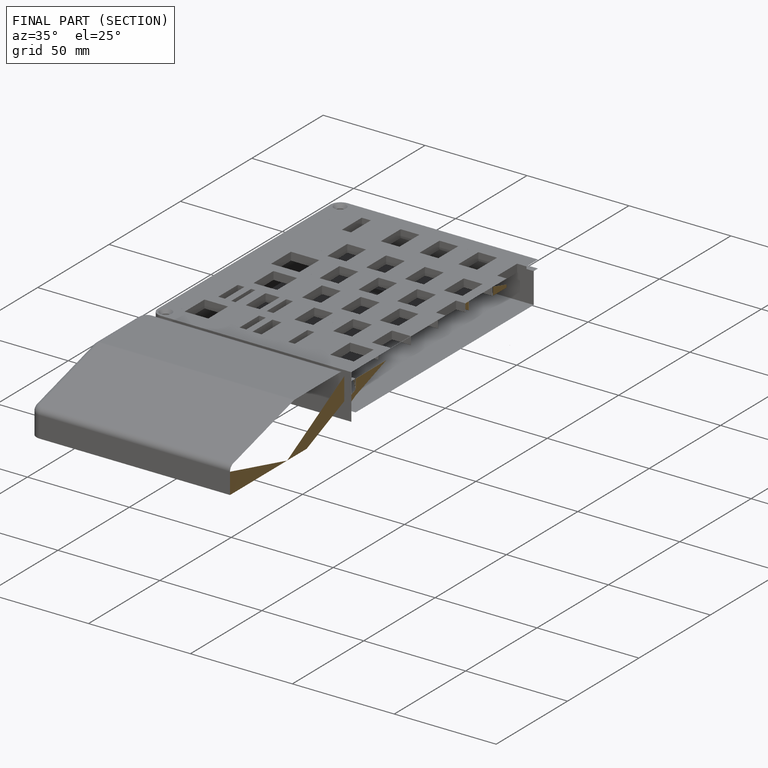
[diagram: finished part — half-section view (interior)]
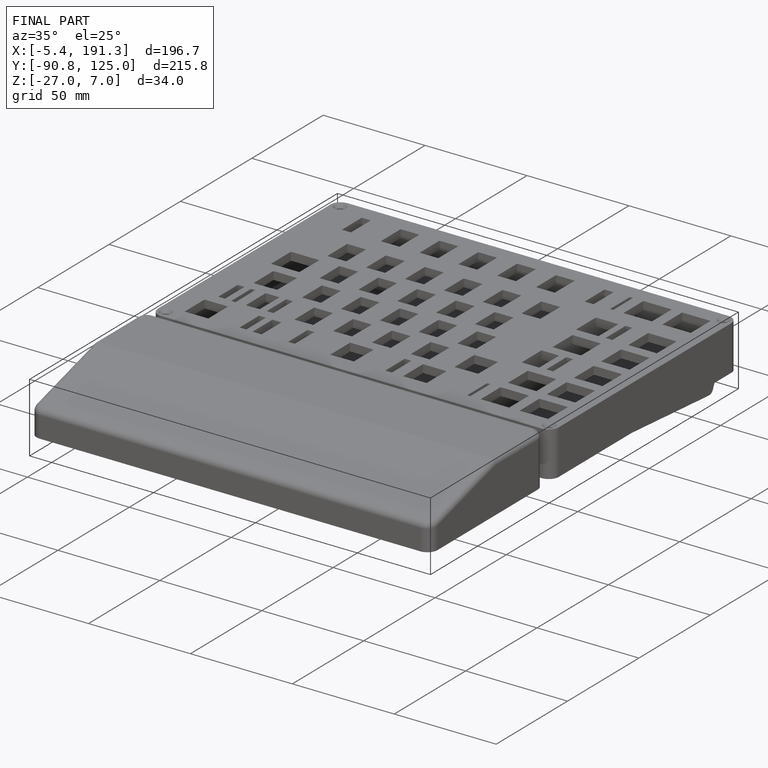
[diagram: finished part — iso view with bounding-box wireframe]
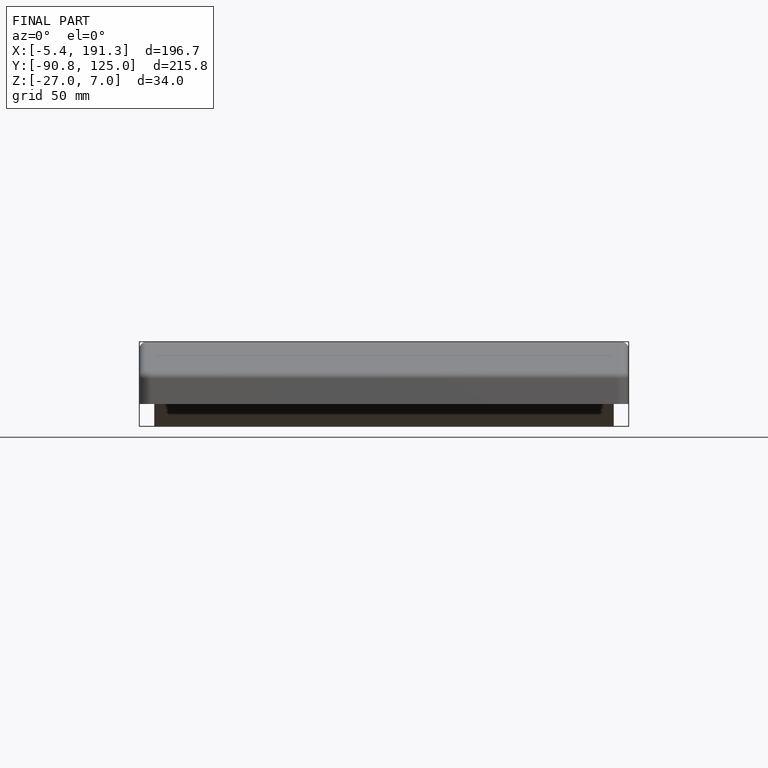
[diagram: finished part — front view with bounding-box wireframe]
